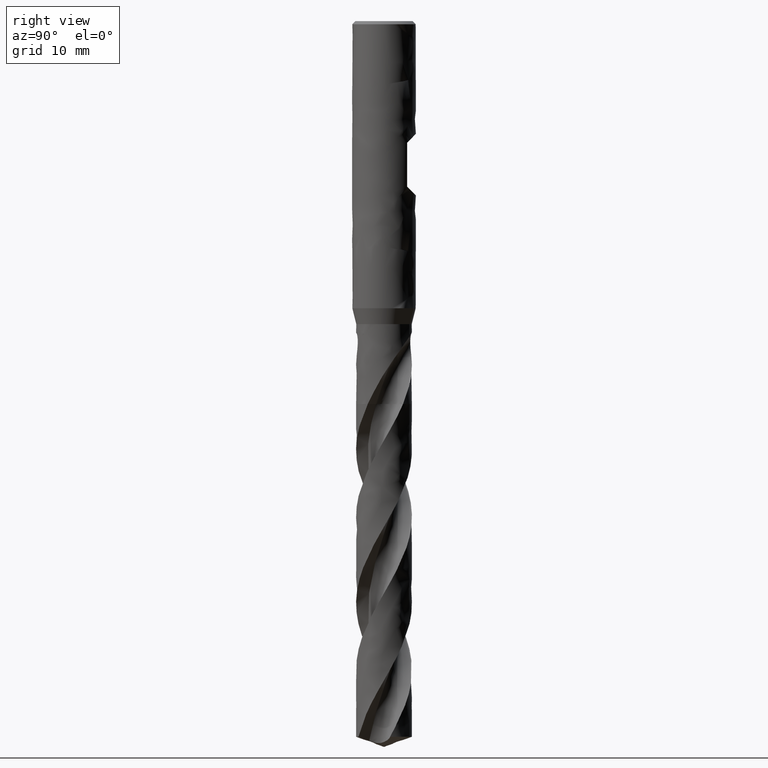
[diagram: clean part render]
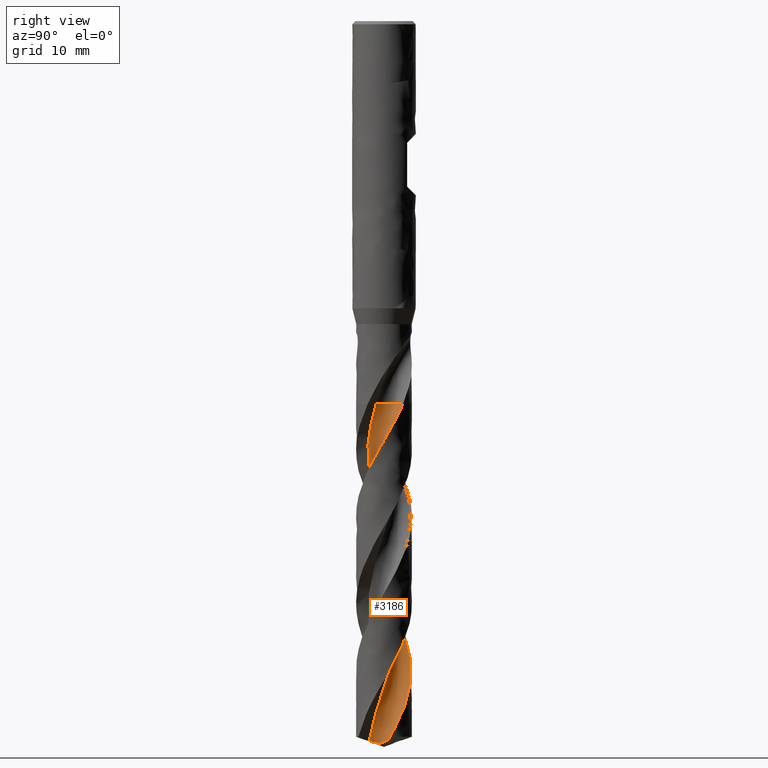
[diagram: same view with one face highlighted and labeled with its STEP entity id]
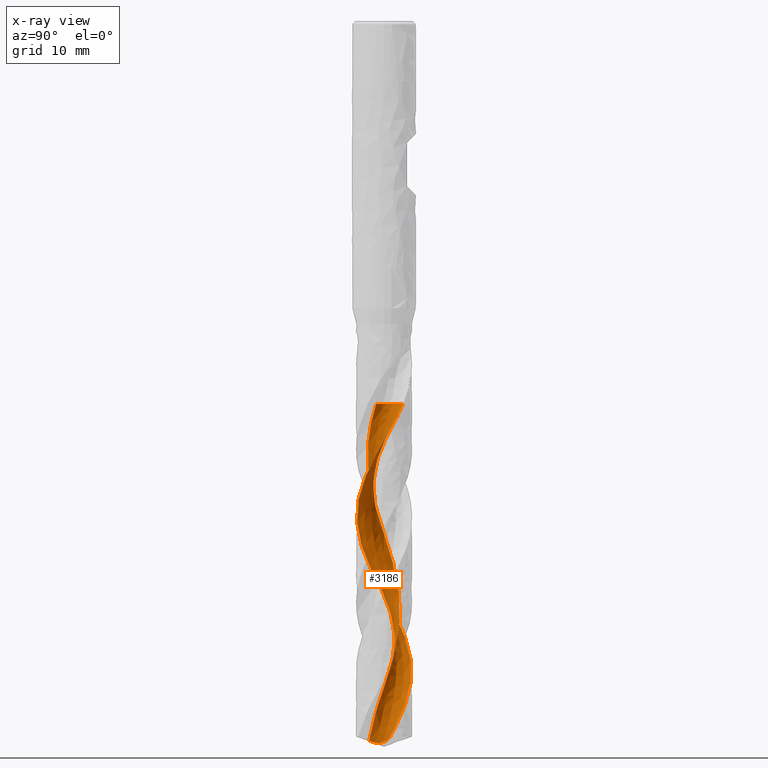
[diagram: x-ray of the same camera — body ghosted, the highlighted face saturated]
A machine part, right view. The second image highlights one B-rep face of the part: STEP entity #3186.
The next image is the same camera in x-ray: the body ghosted, the highlighted face saturated — about 0% of this face is hidden behind the body in this view.
In plain terms, the highlighted face is a freeform B-spline surface patch.
Its self-contained STEP definition (entity closure, byte-faithful):
#1834 = VERTEX_POINT('', #1835);
#1835 = CARTESIAN_POINT('', (1.87105878399884, -0.9739854601201, -48.));
#1841 = EDGE_CURVE('', #1834, #1842, #1844, .T.);
#1842 = VERTEX_POINT('', #1843);
#1843 = CARTESIAN_POINT('', (2.55478292554754, 2.3922968468254, -48.));
#1844 = B_SPLINE_CURVE_WITH_KNOTS('', 3, (#1845, #1846, #1847, #1848, #1849, #1850, #1851, #1852, #1853, #1854, #1855, #1856, #1857, #1858, #1859, #1860, #1861, #1862, #1863, #1864, #1865, #1866, #1867, #1868, #1869, #1870, #1871, #1872, #1873, #1874, #1875, #1876, #1877, #1878, #1879, #1880, #1881, #1882, #1883, #1884, #1885, #1886, #1887, #1888, #1889, #1890, #1891, #1892, #1893, #1894, #1895, #1896, #1897, #1898, #1899, #1900, #1901, #1902, #1903, #1904, #1905, #1906, #1907, #1908, #1909, #1910, #1911), .UNSPECIFIED., .F., .U., (4, 3, 3, 3, 3, 3, 3, 3, 3, 3, 3, 3, 3, 3, 3, 3, 3, 3, 3, 3, 3, 3, 4), (0., 0.198185660012881, 0.396141605212708, 0.593873296694535, 0.791385044629833, 0.988680093004827, 1.18576068233785, 1.38262809298229, 1.57928267078664, 1.77572383617321, 1.97195007706195, 2.01083276721158, 2.04973939964569, 2.24790031997675, 2.44583216438927, 2.64354026674945, 2.84102882016284, 3.03830095921687, 3.2353588205243, 3.43220358407801, 3.62883549710774, 3.82525388143031, 4.00806983014478), .UNSPECIFIED.);
#1845 = CARTESIAN_POINT('', (1.87105878399883, -0.973985460120101, -48.));
#1846 = CARTESIAN_POINT('', (1.82612948131788, -0.925554781504888, -48.));
#1847 = CARTESIAN_POINT('', (1.78342599912703, -0.874960372520404, -48.));
#1848 = CARTESIAN_POINT('', (1.74322934676003, -0.822535168572173, -48.));
#1849 = CARTESIAN_POINT('', (1.70307928588953, -0.770170730099727, -48.));
#1850 = CARTESIAN_POINT('', (1.66534231888975, -0.715865086834874, -48.));
#1851 = CARTESIAN_POINT('', (1.63026619866022, -0.659974769300589, -48.));
#1852 = CARTESIAN_POINT('', (1.59522981429397, -0.604147766922081, -48.));
#1853 = CARTESIAN_POINT('', (1.56277169465028, -0.546617721774213, -48.));
#1854 = CARTESIAN_POINT('', (1.53310445389079, -0.48776147954157, -48.));
#1855 = CARTESIAN_POINT('', (1.50347021299135, -0.42897070506756, -48.));
#1856 = CARTESIAN_POINT('', (1.47655603486923, -0.368728535440026, -48.));
#1857 = CARTESIAN_POINT('', (1.45253782721882, -0.307428705928018, -48.));
#1858 = CARTESIAN_POINT('', (1.42854597108973, -0.246196131383073, -48.));
#1859 = CARTESIAN_POINT('', (1.40739153750378, -0.183775038910553, -48.));
#1860 = CARTESIAN_POINT('', (1.38921248645845, -0.120572511674593, -48.));
#1861 = CARTESIAN_POINT('', (1.37105319597934, -0.0574386853693083, -48.));
#1862 = CARTESIAN_POINT('', (1.35582339795609, 0.00661189344721116, -48.));
#1863 = CARTESIAN_POINT('', (1.34362219903751, 0.0711624209400178, -48.));
#1864 = CARTESIAN_POINT('', (1.33143419794624, 0.135643125235903, -48.));
#1865 = CARTESIAN_POINT('', (1.32224183890544, 0.200762334896175, -48.));
#1866 = CARTESIAN_POINT('', (1.31610481130052, 0.266097206819754, -48.));
#1867 = CARTESIAN_POINT('', (1.30997441842001, 0.331361445385058, -48.));
#1868 = CARTESIAN_POINT('', (1.30687949266754, 0.396981911024951, -48.));
#1869 = CARTESIAN_POINT('', (1.30684008718142, 0.462533425115672, -48.));
#1870 = CARTESIAN_POINT('', (1.3068007244587, 0.528013801746656, -48.));
#1871 = CARTESIAN_POINT('', (1.30981015464197, 0.593566569497241, -48.));
#1872 = CARTESIAN_POINT('', (1.31584892077979, 0.658767908261811, -48.));
#1873 = CARTESIAN_POINT('', (1.32188107995833, 0.723897910832848, -48.));
#1874 = CARTESIAN_POINT('', (1.33094891429165, 0.788817385899811, -48.));
#1875 = CARTESIAN_POINT('', (1.34299392527057, 0.853107524255366, -48.));
#1876 = CARTESIAN_POINT('', (1.34538067246412, 0.86584676605113, -48.));
#1877 = CARTESIAN_POINT('', (1.347884683431, 0.878564595572167, -48.));
#1878 = CARTESIAN_POINT('', (1.35050532291457, 0.891257786360698, -48.));
#1879 = CARTESIAN_POINT('', (1.35312757607496, 0.903958793068952, -48.));
#1880 = CARTESIAN_POINT('', (1.35586682339431, 0.916636205745404, -48.));
#1881 = CARTESIAN_POINT('', (1.3587223690815, 0.929286804224081, -48.));
#1882 = CARTESIAN_POINT('', (1.37326635621222, 0.993719372154977, -48.));
#1883 = CARTESIAN_POINT('', (1.39085271744433, 1.05753945061112, -48.));
#1884 = CARTESIAN_POINT('', (1.41136575495431, 1.12032717762797, -48.));
#1885 = CARTESIAN_POINT('', (1.43185507919679, 1.18304232143208, -48.));
#1886 = CARTESIAN_POINT('', (1.45530915614775, 1.24486479624366, -48.));
#1887 = CARTESIAN_POINT('', (1.48157404118666, 1.30538882026864, -48.));
#1888 = CARTESIAN_POINT('', (1.5078092364134, 1.36584442796883, -48.));
#1889 = CARTESIAN_POINT('', (1.53690617682193, 1.42513657030635, -48.));
#1890 = CARTESIAN_POINT('', (1.56867431076911, 1.48287695163951, -48.));
#1891 = CARTESIAN_POINT('', (1.6004071671517, 1.54055321400255, -48.));
#1892 = CARTESIAN_POINT('', (1.63487443046013, 1.59680686149635, -48.));
#1893 = CARTESIAN_POINT('', (1.67185087980195, 1.65127031353934, -48.));
#1894 = CARTESIAN_POINT('', (1.70878680915182, 1.7056740827659, -48.));
#1895 = CARTESIAN_POINT('', (1.74830673434617, 1.75840988869941, -48.));
#1896 = CARTESIAN_POINT('', (1.79015298340739, 1.80913389112923, -48.));
#1897 = CARTESIAN_POINT('', (1.83195377891398, 1.85980279695498, -48.));
#1898 = CARTESIAN_POINT('', (1.87616653569077, 1.90857421820115, -48.));
#1899 = CARTESIAN_POINT('', (1.9225036091341, 1.95513085196338, -48.));
#1900 = CARTESIAN_POINT('', (1.96879057381141, 2.00163713952774, -48.));
#1901 = CARTESIAN_POINT('', (2.01729746968411, 2.0460341288164, -48.));
#1902 = CARTESIAN_POINT('', (2.06770939589123, 2.08803359998146, -48.));
#1903 = CARTESIAN_POINT('', (2.11806681109834, 2.12998765663164, -48.));
#1904 = CARTESIAN_POINT('', (2.17043392425201, 2.16964002767551, -48.));
#1905 = CARTESIAN_POINT('', (2.22447150805108, 2.20673385024622, -48.));
#1906 = CARTESIAN_POINT('', (2.278450410758, 2.24378739148184, -48.));
#1907 = CARTESIAN_POINT('', (2.33421251591738, 2.27836782864359, -48.));
#1908 = CARTESIAN_POINT('', (2.39139738674109, 2.31025163965197, -48.));
#1909 = CARTESIAN_POINT('', (2.44462207061072, 2.33992742167326, -48.));
#1910 = CARTESIAN_POINT('', (2.49918595568339, 2.36732663012836, -48.));
#1911 = CARTESIAN_POINT('', (2.55478295803652, 2.39229677448741, -48.));
#3008 = EDGE_CURVE('', #1842, #3009, #3011, .T.);
#3009 = VERTEX_POINT('', #3010);
#3010 = CARTESIAN_POINT('', (3.40032915034976, 0.829313975091291, -51.1146068241001));
#3011 = B_SPLINE_CURVE_WITH_KNOTS('', 3, (#3012, #3013, #3014, #3015, #3016, #3017, #3018, #3019, #3020, #3021, #3022, #3023, #3024, #3025, #3026, #3027, #3028, #3029, #3030, #3031, #3032, #3033, #3034, #3035, #3036), .UNSPECIFIED., .F., .U., (4, 3, 3, 3, 3, 3, 3, 3, 4), (2.44854560069451, 2.56196350698601, 3.00523968783606, 3.30076469841309, 3.96540453064606, 4.62984263438679, 5.2941003744853, 5.95816600974996, 6.04395122595029), .UNSPECIFIED.);
#3012 = CARTESIAN_POINT('', (2.55478292554754, 2.3922968468254, -48.));
#3013 = CARTESIAN_POINT('', (2.56771370512689, 2.37848780179523, -48.0327321934645));
#3014 = CARTESIAN_POINT('', (2.58052918009223, 2.3645774808506, -48.0654683666994));
#3015 = CARTESIAN_POINT('', (2.59322761697004, 2.35056812847105, -48.0982064030018));
#3016 = CARTESIAN_POINT('', (2.64285747512926, 2.29581476172286, -48.2261579070911));
#3017 = CARTESIAN_POINT('', (2.69070916361656, 2.23953839635745, -48.3541686852034));
#3018 = CARTESIAN_POINT('', (2.73672120911983, 2.18182424213173, -48.4821710658864));
#3019 = CARTESIAN_POINT('', (2.76739669050471, 2.14334715544213, -48.567508168441));
#3020 = CARTESIAN_POINT('', (2.79726110734358, 2.10422263584689, -48.652851216331));
#3021 = CARTESIAN_POINT('', (2.82629352405804, 2.06447691095532, -48.7381816831251));
#3022 = CARTESIAN_POINT('', (2.89158783040706, 1.9750882264838, -48.9300910820068));
#3023 = CARTESIAN_POINT('', (2.95268185273335, 1.8825325448237, -49.1220262225116));
#3024 = CARTESIAN_POINT('', (3.00922298377582, 1.78733797417146, -49.3139220144172));
#3025 = CARTESIAN_POINT('', (3.06574695370854, 1.6921722965471, -49.5057595629752));
#3026 = CARTESIAN_POINT('', (3.11775547090235, 1.59431687848574, -49.6976649295202));
#3027 = CARTESIAN_POINT('', (3.16499907355799, 1.49424926447262, -49.8895180635713));
#3028 = CARTESIAN_POINT('', (3.21222985180124, 1.39420881410232, -50.0813191185351));
#3029 = CARTESIAN_POINT('', (3.25472538768243, 1.29189788365627, -50.2731735684889));
#3030 = CARTESIAN_POINT('', (3.29226901483488, 1.1878403655196, -50.4649781351406));
#3031 = CARTESIAN_POINT('', (3.32980178428584, 1.08381294105143, -50.6567272314798));
#3032 = CARTESIAN_POINT('', (3.36240654508753, 0.977982304032934, -50.8485341481703));
#3033 = CARTESIAN_POINT('', (3.3899206177559, 0.870883577358286, -51.0402917251286));
#3034 = CARTESIAN_POINT('', (3.39347493610497, 0.857048367501501, -51.0650633204708));
#3035 = CARTESIAN_POINT('', (3.3969445423249, 0.843191446923523, -51.0898350992799));
#3036 = CARTESIAN_POINT('', (3.40032915034975, 0.829313975091304, -51.1146068241001));
#3186 = ADVANCED_FACE('', (#3187), #3463, .T.);
#3187 = FACE_OUTER_BOUND('', #3188, .T.);
#3188 = EDGE_LOOP('', (#3189, #3190, #3264, #3384, #3396, #3462));
#3189 = ORIENTED_EDGE('', *, *, #1841, .F.);
#3190 = ORIENTED_EDGE('', *, *, #3191, .F.);
#3191 = EDGE_CURVE('', #3192, #1834, #3194, .T.);
#3192 = VERTEX_POINT('', #3193);
#3193 = CARTESIAN_POINT('', (0.959453106537391, -1.86267864811491, -90.2373870718703));
#3194 = B_SPLINE_CURVE_WITH_KNOTS('', 3, (#3195, #3196, #3197, #3198, #3199, #3200, #3201, #3202, #3203, #3204, #3205, #3206, #3207, #3208, #3209, #3210, #3211, #3212, #3213, #3214, #3215, #3216, #3217, #3218, #3219, #3220, #3221, #3222, #3223, #3224, #3225, #3226, #3227, #3228, #3229, #3230, #3231, #3232, #3233, #3234, #3235, #3236, #3237, #3238, #3239, #3240, #3241, #3242, #3243, #3244, #3245, #3246, #3247, #3248, #3249, #3250, #3251, #3252, #3253, #3254, #3255, #3256, #3257, #3258, #3259, #3260, #3261, #3262, #3263), .UNSPECIFIED., .F., .U., (4, 1, 1, 1, 1, 1, 1, 1, 1, 1, 1, 1, 1, 1, 1, 1, 1, 1, 1, 1, 1, 1, 1, 1, 1, 1, 1, 1, 1, 1, 1, 1, 1, 1, 1, 1, 1, 1, 1, 1, 1, 1, 1, 1, 1, 1, 1, 1, 1, 1, 1, 1, 1, 1, 1, 1, 1, 1, 1, 1, 1, 1, 1, 1, 1, 1, 4), (0.812612928129724, 1.28518518518519, 1.92777777777778, 2.57037037037037, 3.21296296296296, 3.85555555555556, 4.49814814814815, 5.14074074074074, 5.78333333333333, 6.42592592592593, 7.06851851851852, 7.71111111111111, 8.3537037037037, 8.9962962962963, 9.63888888888889, 10.2814814814815, 10.9240740740741, 11.5666666666667, 12.2092592592593, 12.8518518518519, 13.4944444444444, 14.137037037037, 14.7796296296296, 15.4222222222222, 16.0648148148148, 16.7074074074074, 17.35, 17.9925925925926, 18.6351851851852, 19.2777777777778, 19.9203703703704, 20.562962962963, 21.2055555555556, 21.8481481481482, 22.4907407407407, 23.1333333333333, 23.7759259259259, 24.4185185185185, 25.0611111111111, 25.7037037037037, 26.3462962962963, 26.9888888888889, 27.6314814814815, 28.2740740740741, 28.9166666666667, 29.5592592592593, 30.2018518518519, 30.8444444444444, 31.487037037037, 32.1296296296296, 32.7722222222222, 33.4148148148148, 34.0574074074074, 34.7, 35.3425925925926, 35.9851851851852, 36.6277777777778, 37.2703703703704, 37.912962962963, 38.5555555555556, 39.1981481481482, 39.8407407407407, 40.4833333333333, 41.1259259259259, 41.7685185185185, 42.4111111111111, 43.05), .UNSPECIFIED.);
#3195 = CARTESIAN_POINT('', (0.959453106537387, -1.86267864811492, -90.2373870718703));
#3196 = CARTESIAN_POINT('', (1.00673479369381, -1.83675138737543, -90.0798629861851));
#3197 = CARTESIAN_POINT('', (1.11585591064536, -1.77136073445176, -89.7081413696358));
#3198 = CARTESIAN_POINT('', (1.27756060988365, -1.65336782369903, -89.1222222222222));
#3199 = CARTESIAN_POINT('', (1.44006450271555, -1.50660404251294, -88.4796296296296));
#3200 = CARTESIAN_POINT('', (1.58605536126899, -1.34414575526649, -87.837037037037));
#3201 = CARTESIAN_POINT('', (1.71404800879929, -1.16781759807897, -87.1944444444444));
#3202 = CARTESIAN_POINT('', (1.82275462228815, -0.979580513726898, -86.5518518518519));
#3203 = CARTESIAN_POINT('', (1.91109791334116, -0.781511955428573, -85.9092592592592));
#3204 = CARTESIAN_POINT('', (1.97822101805496, -0.575783307794542, -85.2666666666667));
#3205 = CARTESIAN_POINT('', (2.02349536357702, -0.364636930385888, -84.6240740740741));
#3206 = CARTESIAN_POINT('', (2.04652608410374, -0.15036247702996, -83.9814814814815));
#3207 = CARTESIAN_POINT('', (2.04715504318539, 0.0647271124441746, -83.3388888888889));
#3208 = CARTESIAN_POINT('', (2.02546141975339, 0.278319747526504, -82.6962962962963));
#3209 = CARTESIAN_POINT('', (1.98175987222933, 0.488128196192194, -82.0537037037037));
#3210 = CARTESIAN_POINT('', (1.91659630985968, 0.691913731615287, -81.4111111111111));
#3211 = CARTESIAN_POINT('', (1.83074132597324, 0.887509181272412, -80.7685185185185));
#3212 = CARTESIAN_POINT('', (1.72518136972981, 1.07284115144455, -80.1259259259259));
#3213 = CARTESIAN_POINT('', (1.60110775473214, 1.24595120910678, -79.4833333333333));
#3214 = CARTESIAN_POINT('', (1.45990362339492, 1.40501581453391, -78.8407407407407));
#3215 = CARTESIAN_POINT('', (1.30312900529724, 1.54836481108615, -78.1981481481482));
#3216 = CARTESIAN_POINT('', (1.13250412564692, 1.67449829355771, -77.5555555555555));
#3217 = CARTESIAN_POINT('', (0.94989113632215, 1.78210169299309, -76.912962962963));
#3218 = CARTESIAN_POINT('', (0.757274456582976, 1.87005893384799, -76.2703703703704));
#3219 = CARTESIAN_POINT('', (0.556739923340687, 1.93746353862014, -75.6277777777778));
#3220 = CARTESIAN_POINT('', (0.350452961730159, 1.98362757541857, -74.9851851851852));
#3221 = CARTESIAN_POINT('', (0.140635995560024, 2.00808836518644, -74.3425925925926));
#3222 = CARTESIAN_POINT('', (-0.0704546760528347, 2.01061288724662, -73.7));
#3223 = CARTESIAN_POINT('', (-0.280552304976307, 1.99119984429774, -73.0574074074074));
#3224 = CARTESIAN_POINT('', (-0.48740318999748, 1.95007937074632, -72.4148148148148));
#3225 = CARTESIAN_POINT('', (-0.688790008911783, 1.88771039111118, -71.7722222222222));
#3226 = CARTESIAN_POINT('', (-0.8825547552729, 1.8047756579716, -71.1296296296296));
#3227 = CARTESIAN_POINT('', (-1.06662105247123, 1.70217452134658, -70.487037037037));
#3228 = CARTESIAN_POINT('', (-1.23901562409768, 1.58101350328637, -69.8444444444444));
#3229 = CARTESIAN_POINT('', (-1.39788870790507, 1.44259477263218, -69.2018518518518));
#3230 = CARTESIAN_POINT('', (-1.54153321102345, 1.28840263516627, -68.5592592592593));
#3231 = CARTESIAN_POINT('', (-1.66840241632296, 1.12008817354889, -67.9166666666667));
#3232 = CARTESIAN_POINT('', (-1.77712606383766, 0.939452189349017, -67.2740740740741));
#3233 = CARTESIAN_POINT('', (-1.8665246468383, 0.748426615960248, -66.6314814814815));
#3234 = CARTESIAN_POINT('', (-1.93562177933207, 0.54905458610226, -65.9888888888889));
#3235 = CARTESIAN_POINT('', (-1.98365451031746, 0.34346935080497, -65.3462962962963));
#3236 = CARTESIAN_POINT('', (-2.010081479867, 0.133872258136736, -64.7037037037037));
#3237 = CARTESIAN_POINT('', (-2.014588832874, -0.0774899906383547, -64.0611111111111));
#3238 = CARTESIAN_POINT('', (-1.99709382789401, -0.288348582393627, -63.4185185185185));
#3239 = CARTESIAN_POINT('', (-1.95774610074592, -0.496436100589581, -62.7759259259259));
#3240 = CARTESIAN_POINT('', (-1.89692656520971, -0.699510067328815, -62.1333333333333));
#3241 = CARTESIAN_POINT('', (-1.81524395606485, -0.895376284558908, -61.4907407407407));
#3242 = CARTESIAN_POINT('', (-1.71352904264711, -1.08191174122991, -60.8481481481481));
#3243 = CARTESIAN_POINT('', (-1.59282656385302, -1.25708685668331, -60.2055555555555));
#3244 = CARTESIAN_POINT('', (-1.45438495788266, -1.41898683620626, -59.562962962963));
#3245 = CARTESIAN_POINT('', (-1.29964398177578, -1.56583192248691, -58.9203703703704));
#3246 = CARTESIAN_POINT('', (-1.1302203367633, -1.69599633659393, -58.2777777777778));
#3247 = CARTESIAN_POINT('', (-0.947891435418749, -1.80802571400117, -57.6351851851852));
#3248 = CARTESIAN_POINT('', (-0.754577465402748, -1.90065285497726, -56.9925925925926));
#3249 = CARTESIAN_POINT('', (-0.552321921916402, -1.97281162429218, -56.35));
#3250 = CARTESIAN_POINT('', (-0.343270797208791, -2.02364885235368, -55.7074074074074));
#3251 = CARTESIAN_POINT('', (-0.129650628363317, -2.05253410907911, -55.0648148148148));
#3252 = CARTESIAN_POINT('', (0.086254378199175, -2.05906724043841, -54.4222222222222));
#3253 = CARTESIAN_POINT('', (0.302125934857211, -2.04308358457822, -53.7796296296296));
#3254 = CARTESIAN_POINT('', (0.515635686821465, -2.00465678566696, -53.137037037037));
#3255 = CARTESIAN_POINT('', (0.724469612269798, -1.94409922540482, -52.4944444444444));
#3256 = CARTESIAN_POINT('', (0.926351820488337, -1.86195982214182, -51.8518518518518));
#3257 = CARTESIAN_POINT('', (1.11907028309299, -1.75902006768821, -51.2092592592593));
#3258 = CARTESIAN_POINT('', (1.30049387979968, -1.63628510547679, -50.5666666666667));
#3259 = CARTESIAN_POINT('', (1.46861923632115, -1.49498194430208, -49.9240740740741));
#3260 = CARTESIAN_POINT('', (1.62150262017362, -1.33651995053838, -49.2814814814815));
#3261 = CARTESIAN_POINT('', (1.75735443948593, -1.16291559497238, -48.6401234567901));
#3262 = CARTESIAN_POINT('', (1.83516501613815, -1.03805991579633, -48.212962962963));
#3263 = CARTESIAN_POINT('', (1.87105878399884, -0.9739854601201, -48.));
#3264 = ORIENTED_EDGE('', *, *, #3265, .T.);
#3265 = EDGE_CURVE('', #3192, #3266, #3268, .T.);
#3266 = VERTEX_POINT('', #3267);
#3267 = CARTESIAN_POINT('', (3.41733029677763, 0.756210051986677, -89.7261041800683));
#3268 = B_SPLINE_CURVE_WITH_KNOTS('', 3, (#3269, #3270, #3271, #3272, #3273, #3274, #3275, #3276, #3277, #3278, #3279, #3280, #3281, #3282, #3283, #3284, #3285, #3286, #3287, #3288, #3289, #3290, #3291, #3292, #3293, #3294, #3295, #3296, #3297, #3298, #3299, #3300, #3301, #3302, #3303, #3304, #3305, #3306, #3307, #3308, #3309, #3310, #3311, #3312, #3313, #3314, #3315, #3316, #3317, #3318, #3319, #3320, #3321, #3322, #3323, #3324, #3325, #3326, #3327, #3328, #3329, #3330, #3331, #3332, #3333, #3334, #3335, #3336, #3337, #3338, #3339, #3340, #3341, #3342, #3343, #3344, #3345, #3346, #3347, #3348, #3349, #3350, #3351, #3352, #3353, #3354, #3355, #3356, #3357, #3358, #3359, #3360, #3361, #3362, #3363, #3364, #3365, #3366, #3367, #3368, #3369, #3370, #3371, #3372, #3373, #3374, #3375, #3376, #3377, #3378, #3379, #3380, #3381, #3382, #3383), .UNSPECIFIED., .F., .U., (4, 3, 3, 3, 3, 3, 3, 3, 3, 3, 3, 3, 3, 3, 3, 3, 3, 3, 3, 3, 3, 3, 3, 3, 3, 3, 3, 3, 3, 3, 3, 3, 3, 3, 3, 3, 3, 3, 4), (0., 0.131532600994356, 0.262946989462273, 0.394201536538365, 0.525253913306521, 0.656071726488589, 0.743303418109421, 0.830474163332587, 0.917599516909086, 1.0047025181662, 1.09181165532131, 1.17895682083123, 1.26616406501259, 1.35345076672802, 1.44082291477981, 1.52827531939607, 1.61579428730336, 1.70336143774772, 1.79095730853466, 1.87856394898319, 1.9661663250681, 2.02455914502019, 2.05051629960113, 2.13844859006999, 2.16442698996421, 2.19042078228371, 2.3229442813446, 2.45517467028275, 2.58716037703592, 2.71894189059017, 2.85055199306657, 2.98201673482319, 3.11335657537331, 3.24458744566821, 3.37572164886734, 3.57204063278222, 3.76809802290359, 3.96391621955433, 4.17615603102416), .UNSPECIFIED.);
#3269 = CARTESIAN_POINT('', (0.959453106537389, -1.86267864811491, -90.2373870718703));
#3270 = CARTESIAN_POINT('', (0.949384133137003, -1.82259870132123, -90.2520338306374));
#3271 = CARTESIAN_POINT('', (0.940922847394017, -1.78202959700929, -90.2665492490767));
#3272 = CARTESIAN_POINT('', (0.934147192198522, -1.74113428411029, -90.2808313281365));
#3273 = CARTESIAN_POINT('', (0.92737762649957, -1.70027572512797, -90.2951005714382));
#3274 = CARTESIAN_POINT('', (0.922280471394609, -1.65902799921976, -90.309159285979));
#3275 = CARTESIAN_POINT('', (0.918918258479558, -1.61756537004407, -90.3228853951298));
#3276 = CARTESIAN_POINT('', (0.915560135077065, -1.57615317251771, -90.3365948089977));
#3277 = CARTESIAN_POINT('', (0.913927655198312, -1.53445857928139, -90.3499950675861));
#3278 = CARTESIAN_POINT('', (0.914063262422931, -1.49266658233699, -90.3629413306543));
#3279 = CARTESIAN_POINT('', (0.914198660772849, -1.45093895726451, -90.3758676526991));
#3280 = CARTESIAN_POINT('', (0.916097504182115, -1.40904179270235, -90.3883637338054));
#3281 = CARTESIAN_POINT('', (0.919775908729846, -1.36717028515664, -90.4002611715271));
#3282 = CARTESIAN_POINT('', (0.923447729499526, -1.32537372116561, -90.4121373146662));
#3283 = CARTESIAN_POINT('', (0.928900186913429, -1.28352604538602, -90.4234382459807));
#3284 = CARTESIAN_POINT('', (0.936114923258157, -1.24183204995284, -90.4339756142183));
#3285 = CARTESIAN_POINT('', (0.940925840369828, -1.214029737228, -90.441002122568));
#3286 = CARTESIAN_POINT('', (0.946524393667929, -1.18626613789241, -90.4476963141471));
#3287 = CARTESIAN_POINT('', (0.952894418522687, -1.15860430001327, -90.4539995549318));
#3288 = CARTESIAN_POINT('', (0.95925999281526, -1.13096178870387, -90.4602983918145));
#3289 = CARTESIAN_POINT('', (0.966401731067222, -1.10339625157021, -90.4662122224516));
#3290 = CARTESIAN_POINT('', (0.974293452882386, -1.07597194434941, -90.4716832748085));
#3291 = CARTESIAN_POINT('', (0.982181065311455, -1.04856191754414, -90.4771514782729));
#3292 = CARTESIAN_POINT('', (0.990825159625373, -1.02126790233381, -90.4821820937588));
#3293 = CARTESIAN_POINT('', (1.00018867509724, -0.994154437063136, -90.4867218985398));
#3294 = CARTESIAN_POINT('', (1.0095497883259, -0.967047927848422, -90.4912605386178));
#3295 = CARTESIAN_POINT('', (1.01963865350675, -0.940096709766169, -90.4953125420668));
#3296 = CARTESIAN_POINT('', (1.03040726088181, -0.913364110537731, -90.4988335888057));
#3297 = CARTESIAN_POINT('', (1.04117662684239, -0.886629628153724, -90.5023548835818));
#3298 = CARTESIAN_POINT('', (1.05263575687858, -0.860088982924512, -90.50534816357));
#3299 = CARTESIAN_POINT('', (1.0647268123226, -0.833802245182052, -90.5077823175386));
#3300 = CARTESIAN_POINT('', (1.07682286862932, -0.807504635240129, -90.5102174782738));
#3301 = CARTESIAN_POINT('', (1.08956222092549, -0.781437222665856, -90.5120951210404));
#3302 = CARTESIAN_POINT('', (1.10287967762279, -0.755654478377467, -90.5134006166222));
#3303 = CARTESIAN_POINT('', (1.11620662113458, -0.729853367510715, -90.514707042186));
#3304 = CARTESIAN_POINT('', (1.13012386929494, -0.704314867842906, -90.515441652716));
#3305 = CARTESIAN_POINT('', (1.14456246819645, -0.6790857020391, -90.5156076276651));
#3306 = CARTESIAN_POINT('', (1.15901422260443, -0.653833549070403, -90.5157737538398));
#3307 = CARTESIAN_POINT('', (1.17399974773828, -0.628870792461657, -90.5153705117096));
#3308 = CARTESIAN_POINT('', (1.18945037962902, -0.604234996354223, -90.5144178537129));
#3309 = CARTESIAN_POINT('', (1.2049161363883, -0.579575083875346, -90.5134642631442));
#3310 = CARTESIAN_POINT('', (1.22085905604455, -0.55522459000394, -90.511959763474));
#3311 = CARTESIAN_POINT('', (1.23721445004136, -0.531211598495315, -90.5099379878702));
#3312 = CARTESIAN_POINT('', (1.25358486744966, -0.507176549612068, -90.5079143551442));
#3313 = CARTESIAN_POINT('', (1.27037899604358, -0.483463918583495, -90.5053715086225));
#3314 = CARTESIAN_POINT('', (1.28753878142652, -0.460093071067911, -90.5023524885221));
#3315 = CARTESIAN_POINT('', (1.30471162776294, -0.436704435127509, -90.4993311705328));
#3316 = CARTESIAN_POINT('', (1.32226027311265, -0.413644831134173, -90.4958315585725));
#3317 = CARTESIAN_POINT('', (1.34013466438742, -0.390926436857416, -90.4919016727113));
#3318 = CARTESIAN_POINT('', (1.3580188961978, -0.368195535236244, -90.4879696232977));
#3319 = CARTESIAN_POINT('', (1.37623782333919, -0.345795173512843, -90.4836051763606));
#3320 = CARTESIAN_POINT('', (1.39474959465266, -0.323732197420574, -90.4788575393337));
#3321 = CARTESIAN_POINT('', (1.41326743747139, -0.301661985096128, -90.4741083451731));
#3322 = CARTESIAN_POINT('', (1.43208592006482, -0.279920257990321, -90.4689739337437));
#3323 = CARTESIAN_POINT('', (1.45117077436055, -0.258510329114202, -90.4635019229697));
#3324 = CARTESIAN_POINT('', (1.47025797508448, -0.23709776794861, -90.4580292394276));
#3325 = CARTESIAN_POINT('', (1.48961831328983, -0.216009554101581, -90.4522170656793));
#3326 = CARTESIAN_POINT('', (1.50922404767675, -0.19524698033367, -90.4461096945609));
#3327 = CARTESIAN_POINT('', (1.52882882772985, -0.174485417210201, -90.4400026207264));
#3328 = CARTESIAN_POINT('', (1.54868490244026, -0.154043199643881, -90.4335985976201));
#3329 = CARTESIAN_POINT('', (1.56876986560875, -0.133920744370086, -90.4269377190479));
#3330 = CARTESIAN_POINT('', (1.58215783167151, -0.120507787321321, -90.4224977997149));
#3331 = CARTESIAN_POINT('', (1.59564955226227, -0.107234916302311, -90.417943026686));
#3332 = CARTESIAN_POINT('', (1.60923945114981, -0.094102220100665, -90.4132841776356));
#3333 = CARTESIAN_POINT('', (1.61528052103567, -0.0882643889143921, -90.4112131958767));
#3334 = CARTESIAN_POINT('', (1.62134120918821, -0.0824540542201545, -90.4091215660866));
#3335 = CARTESIAN_POINT('', (1.62742107096521, -0.0766712268759124, -90.4070101797056));
#3336 = CARTESIAN_POINT('', (1.6480171717481, -0.0570813580334147, -90.3998576607354));
#3337 = CARTESIAN_POINT('', (1.66883612969902, -0.0378042711706705, -90.3924776714064));
#3338 = CARTESIAN_POINT('', (1.68986265236554, -0.0188407157839403, -90.3849020679326));
#3339 = CARTESIAN_POINT('', (1.69607465265922, -0.0132381911297322, -90.3826639588667));
#3340 = CARTESIAN_POINT('', (1.70230504122114, -0.00766280391907615, -90.3804086580534));
#3341 = CARTESIAN_POINT('', (1.70855346709071, -0.0021145849382169, -90.3781369180521));
#3342 = CARTESIAN_POINT('', (1.71480559520632, 0.00343692141008737, -90.3758638320253));
#3343 = CARTESIAN_POINT('', (1.7210758934404, 0.00896132621204825, -90.3735742467901));
#3344 = CARTESIAN_POINT('', (1.7273640271219, 0.0144585925279613, -90.3712688863736));
#3345 = CARTESIAN_POINT('', (1.75942266126775, 0.0424851674309147, -90.3595155252158));
#3346 = CARTESIAN_POINT('', (1.79195269503217, 0.0698139218924051, -90.3473504115561));
#3347 = CARTESIAN_POINT('', (1.824915322565, 0.0964372229522978, -90.3348583561047));
#3348 = CARTESIAN_POINT('', (1.85780504468958, 0.123001639670195, -90.3223939300771));
#3349 = CARTESIAN_POINT('', (1.89113905146065, 0.148874547860977, -90.3095987058742));
#3350 = CARTESIAN_POINT('', (1.92488501714323, 0.174043459298218, -90.2965411536377));
#3351 = CARTESIAN_POINT('', (1.95856853850658, 0.199165797596761, -90.2835077633994));
#3352 = CARTESIAN_POINT('', (1.99267539650555, 0.223596240991219, -90.2702078787792));
#3353 = CARTESIAN_POINT('', (2.02717676493516, 0.24731752179497, -90.2566972471271));
#3354 = CARTESIAN_POINT('', (2.06162475679119, 0.271002103744511, -90.2432075175799));
#3355 = CARTESIAN_POINT('', (2.0964786666677, 0.293988302888913, -90.2295026223666));
#3356 = CARTESIAN_POINT('', (2.1317111551805, 0.316254400989189, -90.2156285819717));
#3357 = CARTESIAN_POINT('', (2.16689781603, 0.338491537091899, -90.2017725878426));
#3358 = CARTESIAN_POINT('', (2.20247474407308, 0.360018379087536, -90.1877427957444));
#3359 = CARTESIAN_POINT('', (2.23841468097977, 0.380809146025694, -90.1735778798477));
#3360 = CARTESIAN_POINT('', (2.27431492294664, 0.401576949978565, -90.1594286088167));
#3361 = CARTESIAN_POINT('', (2.31059033863602, 0.421617744749235, -90.1451393216214));
#3362 = CARTESIAN_POINT('', (2.34721271144679, 0.440902053993648, -90.1307432057671));
#3363 = CARTESIAN_POINT('', (2.38380029030073, 0.460168041721134, -90.1163607672853));
#3364 = CARTESIAN_POINT('', (2.42074763094392, 0.478686019097794, -90.1018663488843));
#3365 = CARTESIAN_POINT('', (2.4580247303684, 0.496423138659958, -90.0872890996812));
#3366 = CARTESIAN_POINT('', (2.49527090166764, 0.514145542059553, -90.0727239449544));
#3367 = CARTESIAN_POINT('', (2.53286042339715, 0.531095063998036, -90.0580705214713));
#3368 = CARTESIAN_POINT('', (2.57076078987513, 0.547235771460539, -90.0433550746764));
#3369 = CARTESIAN_POINT('', (2.60863323823943, 0.563364589378223, -90.0286504675529));
#3370 = CARTESIAN_POINT('', (2.64683105076648, 0.578692117856513, -90.0138780790656));
#3371 = CARTESIAN_POINT('', (2.68531855100495, 0.593179601817988, -89.9990621512497));
#3372 = CARTESIAN_POINT('', (2.74293759131563, 0.614868589598551, -89.9768814552634));
#3373 = CARTESIAN_POINT('', (2.8012522795172, 0.634691773627871, -89.954585883727));
#3374 = CARTESIAN_POINT('', (2.86012606664142, 0.652508190957217, -89.9322520140464));
#3375 = CARTESIAN_POINT('', (2.91892140481993, 0.670300868024145, -89.9099479041048));
#3376 = CARTESIAN_POINT('', (2.9783342749635, 0.686109874276089, -89.8875827613927));
#3377 = CARTESIAN_POINT('', (3.03820382027091, 0.699783860664779, -89.8652309357413));
#3378 = CARTESIAN_POINT('', (3.09800032367809, 0.713441164549128, -89.8429063797111));
#3379 = CARTESIAN_POINT('', (3.15831945964427, 0.724983515952118, -89.8205700210619));
#3380 = CARTESIAN_POINT('', (3.21897051547614, 0.734252266720925, -89.7982974088055));
#3381 = CARTESIAN_POINT('', (3.28470786203216, 0.744298309169377, -89.7741569810664));
#3382 = CARTESIAN_POINT('', (3.35091745720051, 0.751685520643645, -89.7500613357416));
#3383 = CARTESIAN_POINT('', (3.41733029677763, 0.756210051986677, -89.7261041800683));
#3384 = ORIENTED_EDGE('', *, *, #3385, .F.);
#3385 = EDGE_CURVE('', #3386, #3266, #3388, .T.);
#3386 = VERTEX_POINT('', #3387);
#3387 = CARTESIAN_POINT('', (3.23621358706718, 1.33301223508331, -88.6576574191729));
#3388 = B_SPLINE_CURVE_WITH_KNOTS('', 3, (#3389, #3390, #3391, #3392, #3393, #3394, #3395), .UNSPECIFIED., .F., .U., (4, 3, 4), (0., 0.664192155566742, 1.22790963141986), .UNSPECIFIED.);
#3389 = CARTESIAN_POINT('', (3.23621358706717, 1.33301223508332, -88.6576574191728));
#3390 = CARTESIAN_POINT('', (3.27778316667913, 1.23209190231497, -88.8502810383199));
#3391 = CARTESIAN_POINT('', (3.31463493641275, 1.12920559866335, -89.0429603014299));
#3392 = CARTESIAN_POINT('', (3.34659086681209, 1.02485587775514, -89.2355914422851));
#3393 = CARTESIAN_POINT('', (3.37371271140521, 0.936291505557512, -89.3990825940301));
#3394 = CARTESIAN_POINT('', (3.39731985772328, 0.846637677819749, -89.5626079232584));
#3395 = CARTESIAN_POINT('', (3.41733029677763, 0.75621005198668, -89.7261041800683));
#3396 = ORIENTED_EDGE('', *, *, #3397, .T.);
#3397 = EDGE_CURVE('', #3386, #3009, #3398, .T.);
#3398 = (
   BOUNDED_CURVE ()
   B_SPLINE_CURVE (3, (#3399, #3400, #3401, #3402, #3403, #3404, #3405, #3406, #3407, #3408, #3409, #3410, #3411, #3412, #3413, #3414, #3415, #3416, #3417, #3418, #3419, #3420, #3421, #3422, #3423, #3424, #3425, #3426, #3427, #3428, #3429, #3430, #3431, #3432, #3433, #3434, #3435, #3436, #3437, #3438, #3439, #3440, #3441, #3442, #3443, #3444, #3445, #3446, #3447, #3448, #3449, #3450, #3451, #3452, #3453, #3454, #3455, #3456, #3457, #3458, #3459, #3460, #3461), .UNSPECIFIED., .F., .U.)
   B_SPLINE_CURVE_WITH_KNOTS ((4, 1, 1, 1, 1, 1, 1, 1, 1, 1, 1, 1, 1, 1, 1, 1, 1, 1, 1, 1, 1, 1, 1, 1, 1, 1, 1, 1, 1, 1, 1, 1, 1, 1, 1, 1, 1, 1, 1, 1, 1, 1, 1, 1, 1, 1, 1, 1, 1, 1, 1, 1, 1, 1, 1, 1, 1, 1, 1, 1, 4), (2.39234258082718, 2.57037037037037, 3.21296296296296, 3.85555555555556, 4.49814814814815, 5.14074074074074, 5.78333333333333, 6.42592592592593, 7.06851851851852, 7.71111111111111, 8.3537037037037, 8.9962962962963, 9.63888888888889, 10.2814814814815, 10.9240740740741, 11.5666666666667, 12.2092592592593, 12.8518518518519, 13.4944444444444, 14.137037037037, 14.7796296296296, 15.4222222222222, 16.0648148148148, 16.7074074074074, 17.35, 17.9925925925926, 18.6351851851852, 19.2777777777778, 19.9203703703704, 20.562962962963, 21.2055555555556, 21.8481481481482, 22.4907407407407, 23.1333333333333, 23.7759259259259, 24.4185185185185, 25.0611111111111, 25.7037037037037, 26.3462962962963, 26.9888888888889, 27.6314814814815, 28.2740740740741, 28.9166666666667, 29.5592592592593, 30.2018518518519, 30.8444444444444, 31.487037037037, 32.1296296296296, 32.7722222222222, 33.4148148148148, 34.0574074074074, 34.7, 35.3425925925926, 35.9851851851852, 36.6277777777778, 37.2703703703704, 37.912962962963, 38.5555555555556, 39.1981481481482, 39.8407407407407, 39.9353931758999), .UNSPECIFIED.)
   CURVE ()
   GEOMETRIC_REPRESENTATION_ITEM ()
   RATIONAL_B_SPLINE_CURVE ((1., 1., 1., 1., 1., 1., 1., 1., 1., 1., 1., 1., 1., 1., 1., 1., 1., 1., 1., 1., 1., 1., 1., 1., 1., 1., 1., 1., 1., 1., 1., 1., 1., 1., 1., 1., 1., 1., 1., 1., 1., 1., 1., 1., 1., 1., 1., 1., 1., 1., 1., 1., 1., 1., 1., 1., 1., 1., 1., 1., 1., 1., 1.))
   REPRESENTATION_ITEM ('')
);
#3399 = CARTESIAN_POINT('', (3.23621358706717, 1.33301223508333, -88.6576574191728));
#3400 = CARTESIAN_POINT('', (3.22253958724728, 1.36406714672126, -88.5983148226584));
#3401 = CARTESIAN_POINT('', (3.15746582081698, 1.50625501132526, -88.3247746952798));
#3402 = CARTESIAN_POINT('', (3.02486791318012, 1.7514124832571, -87.837037037037));
#3403 = CARTESIAN_POINT('', (2.81803520033411, 2.05374997046218, -87.1944444444444));
#3404 = CARTESIAN_POINT('', (2.58144386558697, 2.33228324796233, -86.5518518518519));
#3405 = CARTESIAN_POINT('', (2.3177742328997, 2.58413218183551, -85.9092592592593));
#3406 = CARTESIAN_POINT('', (2.02997996118251, 2.80671254596587, -85.2666666666667));
#3407 = CARTESIAN_POINT('', (1.72125614335056, 2.99776145512587, -84.6240740740741));
#3408 = CARTESIAN_POINT('', (1.39500487331661, 3.15535932739247, -83.9814814814815));
#3409 = CARTESIAN_POINT('', (1.05479894112343, 3.27794824170182, -83.3388888888889));
#3410 = CARTESIAN_POINT('', (0.704343949641171, 3.3643465097571, -82.6962962962963));
#3411 = CARTESIAN_POINT('', (0.347439261868375, 3.41375934188197, -82.0537037037037));
#3412 = CARTESIAN_POINT('', (-0.0120618305467996, 3.42578551938251, -81.4111111111111));
#3413 = CARTESIAN_POINT('', (-0.370292314307882, 3.40042002708405, -80.7685185185185));
#3414 = CARTESIAN_POINT('', (-0.723411634301782, 3.33805263895586, -80.1259259259259));
#3415 = CARTESIAN_POINT('', (-1.06764544546416, 3.2394624893368, -79.4833333333333));
#3416 = CARTESIAN_POINT('', (-1.39932454223246, 3.10580870117747, -78.8407407407407));
#3417 = CARTESIAN_POINT('', (-1.71492258101102, 2.93861718075085, -78.1981481481482));
#3418 = CARTESIAN_POINT('', (-2.01109222457387, 2.73976372506228, -77.5555555555555));
#3419 = CARTESIAN_POINT('', (-2.28469935425498, 2.51145362339667, -76.912962962963));
#3420 = CARTESIAN_POINT('', (-2.5328550159633, 2.25619796776081, -76.2703703703704));
#3421 = CARTESIAN_POINT('', (-2.75294478930325, 1.97678691811958, -75.6277777777778));
#3422 = CARTESIAN_POINT('', (-2.9426552951537, 1.67626019701547, -74.9851851851852));
#3423 = CARTESIAN_POINT('', (-3.09999758570831, 1.35787511415273, -74.3425925925926));
#3424 = CARTESIAN_POINT('', (-3.22332719193482, 1.0250724445967, -73.7));
#3425 = CARTESIAN_POINT('', (-3.31136063638092, 0.681440504189406, -73.0574074074074));
#3426 = CARTESIAN_POINT('', (-3.36318825393228, 0.330677782444661, -72.4148148148148));
#3427 = CARTESIAN_POINT('', (-3.37828319919518, -0.0234454935788117, -71.7722222222222));
#3428 = CARTESIAN_POINT('', (-3.3565065563007, -0.377126481230284, -71.1296296296296));
#3429 = CARTESIAN_POINT('', (-3.29810850477227, -0.726569140767513, -70.487037037037));
#3430 = CARTESIAN_POINT('', (-3.20372553331884, -1.06802355870726, -69.8444444444444));
#3431 = CARTESIAN_POINT('', (-3.07437373166686, -1.39782478558734, -69.2018518518518));
#3432 = CARTESIAN_POINT('', (-2.91143822848003, -1.71243080262324, -68.5592592592593));
#3433 = CARTESIAN_POINT('', (-2.71665888069341, -2.00845924027907, -67.9166666666667));
#3434 = CARTESIAN_POINT('', (-2.49211235587249, -2.28272248384484, -67.2740740740741));
#3435 = CARTESIAN_POINT('', (-2.24019078416969, -2.53226081661293, -66.6314814814815));
#3436 = CARTESIAN_POINT('', (-1.96357718977411, -2.7543732700346, -65.9888888888889));
#3437 = CARTESIAN_POINT('', (-1.66521794313272, -2.94664587214955, -65.3462962962963));
#3438 = CARTESIAN_POINT('', (-1.34829250437597, -3.10697701041915, -64.7037037037037));
#3439 = CARTESIAN_POINT('', (-1.01618075504, -3.23359965264238, -64.0611111111111));
#3440 = CARTESIAN_POINT('', (-0.672428239094633, -3.32510019964472, -63.4185185185185));
#3441 = CARTESIAN_POINT('', (-0.320709655236877, -3.38043377564192, -62.7759259259259));
#3442 = CARTESIAN_POINT('', (0.0352090398053255, -3.39893579630483, -62.1333333333333));
#3443 = CARTESIAN_POINT('', (0.391509542767617, -3.38032969028687, -61.4907407407407));
#3444 = CARTESIAN_POINT('', (0.744360744986636, -3.32473068700143, -60.8481481481481));
#3445 = CARTESIAN_POINT('', (1.08995851065788, -3.23264562142264, -60.2055555555555));
#3446 = CARTESIAN_POINT('', (1.42456529600723, -3.10496874528647, -59.562962962963));
#3447 = CARTESIAN_POINT('', (1.74454921321888, -2.94297357293985, -58.9203703703704));
#3448 = CARTESIAN_POINT('', (2.04642214676479, -2.74830082887363, -58.2777777777778));
#3449 = CARTESIAN_POINT('', (2.32687653733366, -2.52294260230852, -57.6351851851852));
#3450 = CARTESIAN_POINT('', (2.58282045977341, -2.26922285178385, -56.9925925925926));
#3451 = CARTESIAN_POINT('', (2.81141063641957, -1.98977443896515, -56.35));
#3452 = CARTESIAN_POINT('', (3.01008304517864, -1.68751290628316, -55.7074074074074));
#3453 = CARTESIAN_POINT('', (3.17658080484359, -1.36560724426057, -55.0648148148148));
#3454 = CARTESIAN_POINT('', (3.30897903988565, -1.02744793216861, -54.4222222222222));
#3455 = CARTESIAN_POINT('', (3.40570647408227, -0.676612538563045, -53.7796296296296));
#3456 = CARTESIAN_POINT('', (3.46556346126825, -0.316829289438162, -53.137037037037));
#3457 = CARTESIAN_POINT('', (3.4877364622922, 0.0480613217193351, -52.4944444444444));
#3458 = CARTESIAN_POINT('', (3.47180801366733, 0.414145458837865, -51.8518518518518));
#3459 = CARTESIAN_POINT('', (3.43312586572254, 0.674207168928913, -51.3919059784037));
#3460 = CARTESIAN_POINT('', (3.40418124945714, 0.811689356913139, -51.1461576358198));
#3461 = CARTESIAN_POINT('', (3.40032915034975, 0.829313975091292, -51.1146068241001));
#3462 = ORIENTED_EDGE('', *, *, #3008, .F.);
#3463 = (
   BOUNDED_SURFACE ()
   B_SPLINE_SURFACE (3, 2, ((#3464, #3465, #3466, #3467, #3468), (#3469, #3470, #3471, #3472, #3473), (#3474, #3475, #3476, #3477, #3478), (#3479, #3480, #3481, #3482, #3483), (#3484, #3485, #3486, #3487, #3488), (#3489, #3490, #3491, #3492, #3493), (#3494, #3495, #3496, #3497, #3498), (#3499, #3500, #3501, #3502, #3503), (#3504, #3505, #3506, #3507, #3508), (#3509, #3510, #3511, #3512, #3513), (#3514, #3515, #3516, #3517, #3518), (#3519, #3520, #3521, #3522, #3523), (#3524, #3525, #3526, #3527, #3528), (#3529, #3530, #3531, #3532, #3533), (#3534, #3535, #3536, #3537, #3538), (#3539, #3540, #3541, #3542, #3543), (#3544, #3545, #3546, #3547, #3548), (#3549, #3550, #3551, #3552, #3553), (#3554, #3555, #3556, #3557, #3558), (#3559, #3560, #3561, #3562, #3563), (#3564, #3565, #3566, #3567, #3568), (#3569, #3570, #3571, #3572, #3573), (#3574, #3575, #3576, #3577, #3578), (#3579, #3580, #3581, #3582, #3583), (#3584, #3585, #3586, #3587, #3588), (#3589, #3590, #3591, #3592, #3593), (#3594, #3595, #3596, #3597, #3598), (#3599, #3600, #3601, #3602, #3603), (#3604, #3605, #3606, #3607, #3608), (#3609, #3610, #3611, #3612, #3613), (#3614, #3615, #3616, #3617, #3618), (#3619, #3620, #3621, #3622, #3623), (#3624, #3625, #3626, #3627, #3628), (#3629, #3630, #3631, #3632, #3633), (#3634, #3635, #3636, #3637, #3638), (#3639, #3640, #3641, #3642, #3643), (#3644, #3645, #3646, #3647, #3648), (#3649, #3650, #3651, #3652, #3653), (#3654, #3655, #3656, #3657, #3658), (#3659, #3660, #3661, #3662, #3663), (#3664, #3665, #3666, #3667, #3668), (#3669, #3670, #3671, #3672, #3673), (#3674, #3675, #3676, #3677, #3678), (#3679, #3680, #3681, #3682, #3683), (#3684, #3685, #3686, #3687, #3688), (#3689, #3690, #3691, #3692, #3693), (#3694, #3695, #3696, #3697, #3698), (#3699, #3700, #3701, #3702, #3703), (#3704, #3705, #3706, #3707, #3708), (#3709, #3710, #3711, #3712, #3713), (#3714, #3715, #3716, #3717, #3718), (#3719, #3720, #3721, #3722, #3723), (#3724, #3725, #3726, #3727, #3728), (#3729, #3730, #3731, #3732, #3733), (#3734, #3735, #3736, #3737, #3738), (#3739, #3740, #3741, #3742, #3743), (#3744, #3745, #3746, #3747, #3748), (#3749, #3750, #3751, #3752, #3753), (#3754, #3755, #3756, #3757, #3758), (#3759, #3760, #3761, #3762, #3763), (#3764, #3765, #3766, #3767, #3768), (#3769, #3770, #3771, #3772, #3773), (#3774, #3775, #3776, #3777, #3778), (#3779, #3780, #3781, #3782, #3783), (#3784, #3785, #3786, #3787, #3788), (#3789, #3790, #3791, #3792, #3793), (#3794, #3795, #3796, #3797, #3798), (#3799, #3800, #3801, #3802, #3803), (#3804, #3805, #3806, #3807, #3808)), .UNSPECIFIED., .F., .F., .U.)
   B_SPLINE_SURFACE_WITH_KNOTS ((4, 1, 1, 1, 1, 1, 1, 1, 1, 1, 1, 1, 1, 1, 1, 1, 1, 1, 1, 1, 1, 1, 1, 1, 1, 1, 1, 1, 1, 1, 1, 1, 1, 1, 1, 1, 1, 1, 1, 1, 1, 1, 1, 1, 1, 1, 1, 1, 1, 1, 1, 1, 1, 1, 1, 1, 1, 1, 1, 1, 1, 1, 1, 1, 1, 1, 4), (3, 2, 3), (0.534226246154882, 1.28518518518519, 1.92777777777778, 2.57037037037037, 3.21296296296296, 3.85555555555556, 4.49814814814815, 5.14074074074074, 5.78333333333333, 6.42592592592593, 7.06851851851852, 7.71111111111111, 8.3537037037037, 8.9962962962963, 9.63888888888889, 10.2814814814815, 10.9240740740741, 11.5666666666667, 12.2092592592593, 12.8518518518519, 13.4944444444444, 14.137037037037, 14.7796296296296, 15.4222222222222, 16.0648148148148, 16.7074074074074, 17.35, 17.9925925925926, 18.6351851851852, 19.2777777777778, 19.9203703703704, 20.562962962963, 21.2055555555556, 21.8481481481482, 22.4907407407407, 23.1333333333333, 23.7759259259259, 24.4185185185185, 25.0611111111111, 25.7037037037037, 26.3462962962963, 26.9888888888889, 27.6314814814815, 28.2740740740741, 28.9166666666667, 29.5592592592593, 30.2018518518519, 30.8444444444444, 31.487037037037, 32.1296296296296, 32.7722222222222, 33.4148148148148, 34.0574074074074, 34.7, 35.3425925925926, 35.9851851851852, 36.6277777777778, 37.2703703703704, 37.912962962963, 38.5555555555556, 39.1981481481482, 39.8407407407407, 40.4833333333333, 41.1259259259259, 41.7685185185185, 42.4111111111111, 43.0500000000025), (0., 0.5, 1.), .UNSPECIFIED.)
   GEOMETRIC_REPRESENTATION_ITEM ()
   RATIONAL_B_SPLINE_SURFACE (((1., 0.887010833178222, 1., 0.887010833178222, 1.), (1., 0.887010833178222, 1., 0.887010833178222, 1.), (1., 0.887010833178222, 1., 0.887010833178222, 1.), (1., 0.887010833178222, 1., 0.887010833178222, 1.), (1., 0.887010833178222, 1., 0.887010833178222, 1.), (1., 0.887010833178222, 1., 0.887010833178222, 1.), (1., 0.887010833178221, 1., 0.887010833178221, 1.), (1., 0.887010833178222, 1., 0.887010833178222, 1.), (1., 0.887010833178222, 1., 0.887010833178222, 1.), (1., 0.887010833178222, 1., 0.887010833178222, 1.), (1., 0.887010833178222, 1., 0.887010833178222, 1.), (1., 0.887010833178221, 1., 0.887010833178221, 1.), (1., 0.887010833178222, 1., 0.887010833178222, 1.), (1., 0.887010833178222, 1., 0.887010833178222, 1.), (1., 0.887010833178222, 1., 0.887010833178222, 1.), (1., 0.887010833178222, 1., 0.887010833178222, 1.), (1., 0.887010833178222, 1., 0.887010833178222, 1.), (1., 0.887010833178222, 1., 0.887010833178222, 1.), (1., 0.887010833178222, 1., 0.887010833178222, 1.), (1., 0.887010833178222, 1., 0.887010833178222, 1.), (1., 0.887010833178222, 1., 0.887010833178222, 1.), (1., 0.887010833178222, 1., 0.887010833178222, 1.), (1., 0.887010833178222, 1., 0.887010833178222, 1.), (1., 0.887010833178222, 1., 0.887010833178222, 1.), (1., 0.887010833178222, 1., 0.887010833178222, 1.), (1., 0.887010833178222, 1., 0.887010833178222, 1.), (1., 0.887010833178222, 1., 0.887010833178222, 1.), (1., 0.887010833178222, 1., 0.887010833178222, 1.), (1., 0.887010833178222, 1., 0.887010833178222, 1.), (1., 0.887010833178222, 1., 0.887010833178222, 1.), (1., 0.887010833178222, 1., 0.887010833178222, 1.), (1., 0.887010833178222, 1., 0.887010833178222, 1.), (1., 0.887010833178222, 1., 0.887010833178222, 1.), (1., 0.887010833178222, 1., 0.887010833178222, 1.), (1., 0.887010833178222, 1., 0.887010833178222, 1.), (1., 0.887010833178222, 1., 0.887010833178222, 1.), (1., 0.887010833178221, 1., 0.887010833178221, 1.), (1., 0.887010833178222, 1., 0.887010833178222, 1.), (1., 0.887010833178221, 1., 0.887010833178221, 1.), (1., 0.887010833178222, 1., 0.887010833178222, 1.), (1., 0.887010833178221, 1., 0.887010833178221, 1.), (1., 0.887010833178222, 1., 0.887010833178222, 1.), (1., 0.887010833178222, 1., 0.887010833178222, 1.), (1., 0.887010833178222, 1., 0.887010833178222, 1.), (1., 0.887010833178222, 1., 0.887010833178222, 1.), (1., 0.887010833178222, 1., 0.887010833178222, 1.), (1., 0.887010833178222, 1., 0.887010833178222, 1.), (1., 0.887010833178222, 1., 0.887010833178222, 1.), (1., 0.887010833178222, 1., 0.887010833178222, 1.), (1., 0.887010833178222, 1., 0.887010833178222, 1.), (1., 0.887010833178222, 1., 0.887010833178222, 1.), (1., 0.887010833178222, 1., 0.887010833178222, 1.), (1., 0.887010833178222, 1., 0.887010833178222, 1.), (1., 0.887010833178222, 1., 0.887010833178222, 1.), (1., 0.887010833178222, 1., 0.887010833178222, 1.), (1., 0.887010833178222, 1., 0.887010833178222, 1.), (1., 0.887010833178222, 1., 0.887010833178222, 1.), (1., 0.887010833178222, 1., 0.887010833178222, 1.), (1., 0.887010833178222, 1., 0.887010833178222, 1.), (1., 0.887010833178222, 1., 0.887010833178222, 1.), (1., 0.887010833178222, 1., 0.887010833178222, 1.), (1., 0.887010833178222, 1., 0.887010833178222, 1.), (1., 0.887010833178222, 1., 0.887010833178222, 1.), (1., 0.887010833178222, 1., 0.887010833178222, 1.), (1., 0.887010833178222, 1., 0.887010833178222, 1.), (1., 0.887010833178222, 1., 0.887010833178222, 1.), (1., 0.887010833178222, 1., 0.887010833178222, 1.), (1., 0.887010833178222, 1., 0.887010833178222, 1.), (1., 0.887010833178222, 1., 0.887010833178222, 1.)))
   REPRESENTATION_ITEM ('')
   SURFACE ()
);
#3464 = CARTESIAN_POINT('', (3.51340825523852, 0.307332544212533, -90.5157737538451));
#3465 = CARTESIAN_POINT('', (2.45626563912814, 0.590609328167666, -90.5157737538451));
#3466 = CARTESIAN_POINT('', (1.61786678798826, -0.112870318682201, -90.5157737538451));
#3467 = CARTESIAN_POINT('', (0.779467936848383, -0.816349965532069, -90.5157737538451));
#3468 = CARTESIAN_POINT('', (0.874838902403528, -1.90662544725848, -90.5157737538451));
#3469 = CARTESIAN_POINT('', (3.49706552643856, 0.450640060276891, -90.2654541075017));
#3470 = CARTESIAN_POINT('', (2.42947854772525, 0.690393264148032, -90.2654541075017));
#3471 = CARTESIAN_POINT('', (1.62074148590422, -0.0466060036411223, -90.2654541075017));
#3472 = CARTESIAN_POINT('', (0.812004424083182, -0.783605271430277, -90.2654541075017));
#3473 = CARTESIAN_POINT('', (0.951846359067832, -1.86880930252508, -90.2654541075017));
#3474 = CARTESIAN_POINT('', (3.45059807130455, 0.714299195038584, -89.8009369302941));
#3475 = CARTESIAN_POINT('', (2.36857768072683, 0.872236515112626, -89.8009369302941));
#3476 = CARTESIAN_POINT('', (1.61858160243192, 0.0764864254234226, -89.8009369302941));
#3477 = CARTESIAN_POINT('', (0.868585524137014, -0.719263664265781, -89.8009369302941));
#3478 = CARTESIAN_POINT('', (1.09024575898342, -1.79004798567974, -89.8009369302941));
#3479 = CARTESIAN_POINT('', (3.34007754300411, 1.08815077677061, -89.1222222222222));
#3480 = CARTESIAN_POINT('', (2.25060657761688, 1.12534137342514, -89.1222222222222));
#3481 = CARTESIAN_POINT('', (1.59524695050426, 0.25423065482957, -89.1222222222222));
#3482 = CARTESIAN_POINT('', (0.939887323391638, -0.616880063766003, -89.1222222222222));
#3483 = CARTESIAN_POINT('', (1.27756060988364, -1.65336782369903, -89.1222222222222));
#3484 = CARTESIAN_POINT('', (3.19956517471146, 1.42841840474019, -88.4796296296296));
#3485 = CARTESIAN_POINT('', (2.11495381295976, 1.35147230351551, -88.4796296296296));
#3486 = CARTESIAN_POINT('', (1.55587684937863, 0.41887621874599, -88.4796296296296));
#3487 = CARTESIAN_POINT('', (0.996799885797506, -0.513719866023535, -88.4796296296296));
#3488 = CARTESIAN_POINT('', (1.44006450271554, -1.50660404251294, -88.4796296296296));
#3489 = CARTESIAN_POINT('', (3.02486791318012, 1.7514124832571, -87.837037037037));
#3490 = CARTESIAN_POINT('', (1.95691793701043, 1.5617385004962, -87.837037037037));
#3491 = CARTESIAN_POINT('', (1.49973882620486, 0.57813256721791, -87.837037037037));
#3492 = CARTESIAN_POINT('', (1.04255971539929, -0.405473366060381, -87.837037037037));
#3493 = CARTESIAN_POINT('', (1.58605536126899, -1.34414575526649, -87.837037037037));
#3494 = CARTESIAN_POINT('', (2.81803520033411, 2.05374997046218, -87.1944444444444));
#3495 = CARTESIAN_POINT('', (1.77830982599159, 1.75396094883665, -87.1944444444445));
#3496 = CARTESIAN_POINT('', (1.42752064091239, 0.7303158642637, -87.1944444444444));
#3497 = CARTESIAN_POINT('', (1.07673145583319, -0.293329220309252, -87.1944444444445));
#3498 = CARTESIAN_POINT('', (1.71404800879929, -1.16781759807897, -87.1944444444444));
#3499 = CARTESIAN_POINT('', (2.58144386558697, 2.33228324796233, -86.5518518518519));
#3500 = CARTESIAN_POINT('', (1.58114728941186, 1.92616215337941, -86.5518518518519));
#3501 = CARTESIAN_POINT('', (1.34007566881167, 0.87382567795242, -86.5518518518519));
#3502 = CARTESIAN_POINT('', (1.09900404821149, -0.178510797474567, -86.5518518518519));
#3503 = CARTESIAN_POINT('', (1.82275462228815, -0.979580513726899, -86.5518518518519));
#3504 = CARTESIAN_POINT('', (2.3177742328997, 2.58413218183551, -85.9092592592593));
#3505 = CARTESIAN_POINT('', (1.36763474160053, 2.07658631534699, -85.9092592592592));
#3506 = CARTESIAN_POINT('', (1.23841435224926, 1.00716125930438, -85.9092592592593));
#3507 = CARTESIAN_POINT('', (1.10919396289799, -0.0622637967382235, -85.9092592592592));
#3508 = CARTESIAN_POINT('', (1.91109791334116, -0.781511955428574, -85.9092592592593));
#3509 = CARTESIAN_POINT('', (2.02997996118251, 2.80671254596587, -85.2666666666667));
#3510 = CARTESIAN_POINT('', (1.14013882005267, 2.20371626632549, -85.2666666666667));
#3511 = CARTESIAN_POINT('', (1.12369254457095, 1.12893661926746, -85.2666666666667));
#3512 = CARTESIAN_POINT('', (1.10724626908923, 0.0541569722094307, -85.2666666666667));
#3513 = CARTESIAN_POINT('', (1.97822101805496, -0.575783307794543, -85.2666666666667));
#3514 = CARTESIAN_POINT('', (1.72125614335056, 2.99776145512587, -84.6240740740741));
#3515 = CARTESIAN_POINT('', (0.901163087582668, 2.30628809914658, -84.6240740740741));
#3516 = CARTESIAN_POINT('', (0.997198848300884, 1.23789437265281, -84.6240740740741));
#3517 = CARTESIAN_POINT('', (1.0932346090191, 0.169500646159046, -84.6240740740741));
#3518 = CARTESIAN_POINT('', (2.02349536357702, -0.364636930385889, -84.6240740740741));
#3519 = CARTESIAN_POINT('', (1.39500487331661, 3.15535932739247, -83.9814814814815));
#3520 = CARTESIAN_POINT('', (0.653321309134096, 2.38330307142283, -83.9814814814815));
#3521 = CARTESIAN_POINT('', (0.860340553873786, 1.33291818764558, -83.9814814814815));
#3522 = CARTESIAN_POINT('', (1.06735979861348, 0.282533303868324, -83.9814814814815));
#3523 = CARTESIAN_POINT('', (2.04652608410374, -0.15036247702996, -83.9814814814815));
#3524 = CARTESIAN_POINT('', (1.05479894112343, 3.27794824170182, -83.3388888888889));
#3525 = CARTESIAN_POINT('', (0.399309785173756, 2.43403675674308, -83.3388888888889));
#3526 = CARTESIAN_POINT('', (0.714628469140303, 1.41304373249929, -83.3388888888889));
#3527 = CARTESIAN_POINT('', (1.02994715310685, 0.392050708255494, -83.3388888888889));
#3528 = CARTESIAN_POINT('', (2.04715504318539, 0.0647271124441738, -83.3388888888889));
#3529 = CARTESIAN_POINT('', (0.704343949641171, 3.3643465097571, -82.6962962962963));
#3530 = CARTESIAN_POINT('', (0.141878968718964, 2.45804534660337, -82.6962962962963));
#3531 = CARTESIAN_POINT('', (0.561660759928212, 1.47746801621745, -82.6962962962963));
#3532 = CARTESIAN_POINT('', (0.981442551137461, 0.496890685831531, -82.6962962962963));
#3533 = CARTESIAN_POINT('', (2.02546141975339, 0.278319747526504, -82.6962962962963));
#3534 = CARTESIAN_POINT('', (0.347439261868375, 3.41375934188197, -82.0537037037037));
#3535 = CARTESIAN_POINT('', (-0.116195331461258, 2.45516906119027, -82.0537037037037));
#3536 = CARTESIAN_POINT('', (0.403105978791826, 1.52555703914131, -82.0537037037037));
#3537 = CARTESIAN_POINT('', (0.92240728904491, 0.595945017092358, -82.0537037037037));
#3538 = CARTESIAN_POINT('', (1.98175987222933, 0.488128196192193, -82.0537037037037));
#3539 = CARTESIAN_POINT('', (-0.0120618305467996, 3.42578551938251, -81.4111111111111));
#3540 = CARTESIAN_POINT('', (-0.372140875479488, 2.42553264853484, -81.4111111111111));
#3541 = CARTESIAN_POINT('', (0.240685453084132, 1.55685168566189, -81.4111111111111));
#3542 = CARTESIAN_POINT('', (0.853511781647752, 0.688170722788941, -81.4111111111111));
#3543 = CARTESIAN_POINT('', (1.91659630985967, 0.691913731615286, -81.4111111111111));
#3544 = CARTESIAN_POINT('', (-0.370292314307882, 3.40042002708405, -80.7685185185185));
#3545 = CARTESIAN_POINT('', (-0.623217754214442, 2.36954298201438, -80.7685185185185));
#3546 = CARTESIAN_POINT('', (0.0761552121808467, 1.57107180903507, -80.7685185185185));
#3547 = CARTESIAN_POINT('', (0.775528178576136, 0.772600636055766, -80.7685185185185));
#3548 = CARTESIAN_POINT('', (1.83074132597323, 0.887509181272411, -80.7685185185185));
#3549 = CARTESIAN_POINT('', (-0.723411634301782, 3.33805263895586, -80.1259259259259));
#3550 = CARTESIAN_POINT('', (-0.866746702428916, 2.28788379392142, -80.1259259259259));
#3551 = CARTESIAN_POINT('', (-0.0887123637508365, 1.56811847614502, -80.1259259259259));
#3552 = CARTESIAN_POINT('', (0.689321974927243, 0.848353158368627, -80.1259259259259));
#3553 = CARTESIAN_POINT('', (1.72518136972981, 1.07284115144455, -80.1259259259259));
#3554 = CARTESIAN_POINT('', (-1.06764544546416, 3.2394624893368, -79.4833333333333));
#3555 = CARTESIAN_POINT('', (-1.1001366826492, 2.1815076106706, -79.4833333333333));
#3556 = CARTESIAN_POINT('', (-0.252146989061499, 1.54807435818343, -79.4833333333333));
#3557 = CARTESIAN_POINT('', (0.595842704526204, 0.914641105696259, -79.4833333333333));
#3558 = CARTESIAN_POINT('', (1.60110775473214, 1.24595120910678, -79.4833333333333));
#3559 = CARTESIAN_POINT('', (-1.39932454223246, 3.10580870117747, -78.8407407407407));
#3560 = CARTESIAN_POINT('', (-1.32091146796163, 2.05162498209869, -78.8407407407407));
#3561 = CARTESIAN_POINT('', (-0.412398827718482, 1.51120227133813, -78.8407407407407));
#3562 = CARTESIAN_POINT('', (0.496113812524666, 0.970779560577565, -78.8407407407407));
#3563 = CARTESIAN_POINT('', (1.45990362339492, 1.40501581453391, -78.8407407407407));
#3564 = CARTESIAN_POINT('', (-1.71492258101102, 2.93861718075085, -78.1981481481482));
#3565 = CARTESIAN_POINT('', (-1.52673496291119, 1.89969112320995, -78.1981481481482));
#3566 = CARTESIAN_POINT('', (-0.567756575656355, 1.45794188956975, -78.1981481481482));
#3567 = CARTESIAN_POINT('', (0.391221811598479, 1.01619265592955, -78.1981481481482));
#3568 = CARTESIAN_POINT('', (1.30312900529725, 1.54836481108615, -78.1981481481482));
#3569 = CARTESIAN_POINT('', (-2.01109222457387, 2.73976372506228, -77.5555555555555));
#3570 = CARTESIAN_POINT('', (-1.71543501515476, 1.72739011134023, -77.5555555555555));
#3571 = CARTESIAN_POINT('', (-0.716565091330008, 1.38890466923016, -77.5555555555555));
#3572 = CARTESIAN_POINT('', (0.282304832494745, 1.05041922712008, -77.5555555555555));
#3573 = CARTESIAN_POINT('', (1.13250412564692, 1.6744982935577, -77.5555555555555));
#3574 = CARTESIAN_POINT('', (-2.28469935425498, 2.51145362339667, -76.912962962963));
#3575 = CARTESIAN_POINT('', (-1.8850254862474, 1.53661680485772, -76.912962962963));
#3576 = CARTESIAN_POINT('', (-0.85724240057862, 1.30486704248365, -76.912962962963));
#3577 = CARTESIAN_POINT('', (0.170540685090162, 1.07311728010958, -76.912962962963));
#3578 = CARTESIAN_POINT('', (0.94989113632215, 1.78210169299309, -76.912962962963));
#3579 = CARTESIAN_POINT('', (-2.5328550159633, 2.25619796776081, -76.2703703703704));
#3580 = CARTESIAN_POINT('', (-2.03372636777708, 1.3294566709787, -76.2703703703704));
#3581 = CARTESIAN_POINT('', (-0.988295908683613, 1.20676195307601, -76.2703703703704));
#3582 = CARTESIAN_POINT('', (0.057134550409857, 1.08406723517332, -76.2703703703704));
#3583 = CARTESIAN_POINT('', (0.757274456582977, 1.87005893384799, -76.2703703703704));
#3584 = CARTESIAN_POINT('', (-2.75294478930325, 1.97678691811958, -75.6277777777778));
#3585 = CARTESIAN_POINT('', (-2.15998174883414, 1.10816372987078, -75.6277777777778));
#3586 = CARTESIAN_POINT('', (-1.10833766082316, 1.09566882381123, -75.6277777777778));
#3587 = CARTESIAN_POINT('', (-0.0566935728121737, 1.08317391775169, -75.6277777777778));
#3588 = CARTESIAN_POINT('', (0.556739923340687, 1.93746353862014, -75.6277777777778));
#3589 = CARTESIAN_POINT('', (-2.9426552951537, 1.67626019701547, -74.9851851851852));
#3590 = CARTESIAN_POINT('', (-2.26247546231629, 0.875136839772374, -74.9851851851852));
#3591 = CARTESIAN_POINT('', (-1.21609850190621, 0.972802060000203, -74.9851851851852));
#3592 = CARTESIAN_POINT('', (-0.16972154149613, 1.07046728022803, -74.9851851851852));
#3593 = CARTESIAN_POINT('', (0.35045296173016, 1.98362757541857, -74.9851851851852));
#3594 = CARTESIAN_POINT('', (-3.09999758570831, 1.35787511415273, -74.3425925925926));
#3595 = CARTESIAN_POINT('', (-2.34014426062395, 0.63289456322944, -74.3425925925926));
#3596 = CARTESIAN_POINT('', (-1.310440997914, 0.839498207009682, -74.3425925925926));
#3597 = CARTESIAN_POINT('', (-0.280737735204053, 1.04610185078992, -74.3425925925926));
#3598 = CARTESIAN_POINT('', (0.140635995560025, 2.00808836518644, -74.3425925925926));
#3599 = CARTESIAN_POINT('', (-3.22332719193482, 1.0250724445967, -73.7));
#3600 = CARTESIAN_POINT('', (-2.39218839567765, 0.384048867607182, -73.7));
#3601 = CARTESIAN_POINT('', (-1.39037099327896, 0.697201892742486, -73.7));
#3602 = CARTESIAN_POINT('', (-0.388553590880271, 1.01035491787779, -73.7));
#3603 = CARTESIAN_POINT('', (-0.0704546760528336, 2.01061288724662, -73.7));
#3604 = CARTESIAN_POINT('', (-3.31136063638092, 0.681440504189406, -73.0574074074074));
#3605 = CARTESIAN_POINT('', (-2.41807950366215, 0.131277923667931, -73.0574074074074));
#3606 = CARTESIAN_POINT('', (-1.45504769237221, 0.547450697310095, -73.0574074074074));
#3607 = CARTESIAN_POINT('', (-0.492015881082281, 0.963623470952259, -73.0574074074074));
#3608 = CARTESIAN_POINT('', (-0.280552304976307, 1.99119984429774, -73.0574074074074));
#3609 = CARTESIAN_POINT('', (-3.36318825393228, 0.330677782444661, -72.4148148148148));
#3610 = CARTESIAN_POINT('', (-2.41756572123647, -0.122701725870604, -72.4148148148148));
#3611 = CARTESIAN_POINT('', (-1.50379216772438, 0.39185910221884, -72.4148148148148));
#3612 = CARTESIAN_POINT('', (-0.590018614212276, 0.906419930308284, -72.4148148148148));
#3613 = CARTESIAN_POINT('', (-0.487403189997479, 1.95007937074632, -72.4148148148148));
#3614 = CARTESIAN_POINT('', (-3.37828319919518, -0.0234454935788117, -71.7722222222222));
#3615 = CARTESIAN_POINT('', (-2.39067398690315, -0.375163350334773, -71.7722222222222));
#3616 = CARTESIAN_POINT('', (-1.53609421303464, 0.232101679993769, -71.7722222222222));
#3617 = CARTESIAN_POINT('', (-0.681514439166124, 0.839366710322312, -71.7722222222222));
#3618 = CARTESIAN_POINT('', (-0.688790008911782, 1.88771039111118, -71.7722222222222));
#3619 = CARTESIAN_POINT('', (-3.3565065563007, -0.377126481230284, -71.1296296296296));
#3620 = CARTESIAN_POINT('', (-2.3377095085581, -0.623398287260719, -71.1296296296296));
#3621 = CARTESIAN_POINT('', (-1.55161747518836, 0.0698956922365452, -71.1296296296296));
#3622 = CARTESIAN_POINT('', (-0.765525441818626, 0.76318967173381, -71.1296296296296));
#3623 = CARTESIAN_POINT('', (-0.882554755272899, 1.8047756579716, -71.1296296296296));
#3624 = CARTESIAN_POINT('', (-3.29810850477227, -0.726569140767513, -70.487037037037));
#3625 = CARTESIAN_POINT('', (-2.25925240569739, -0.864743990042847, -70.487037037037));
#3626 = CARTESIAN_POINT('', (-1.55020281625526, -0.093016730404259, -70.487037037037));
#3627 = CARTESIAN_POINT('', (-0.841153226813127, 0.678710529234329, -70.487037037037));
#3628 = CARTESIAN_POINT('', (-1.06662105247123, 1.70217452134658, -70.487037037037));
#3629 = CARTESIAN_POINT('', (-3.20372553331884, -1.06802355870726, -69.8444444444444));
#3630 = CARTESIAN_POINT('', (-2.15615156208896, -1.09661158872436, -69.8444444444444));
#3631 = CARTESIAN_POINT('', (-1.53186987362611, -0.25488664902697, -69.8444444444444));
#3632 = CARTESIAN_POINT('', (-0.907588185163267, 0.58683829067042, -69.8444444444444));
#3633 = CARTESIAN_POINT('', (-1.23901562409768, 1.58101350328637, -69.8444444444444));
#3634 = CARTESIAN_POINT('', (-3.07437373166686, -1.39782478558734, -69.2018518518518));
#3635 = CARTESIAN_POINT('', (-2.02951575168071, -1.31651269054084, -69.2018518518519));
#3636 = CARTESIAN_POINT('', (-1.49681680391005, -0.413976438534503, -69.2018518518518));
#3637 = CARTESIAN_POINT('', (-0.964117856139402, 0.488559813471832, -69.2018518518519));
#3638 = CARTESIAN_POINT('', (-1.39788870790507, 1.44259477263218, -69.2018518518518));
#3639 = CARTESIAN_POINT('', (-2.91143822848003, -1.71243080262324, -68.5592592592593));
#3640 = CARTESIAN_POINT('', (-1.88070212686732, -1.5220851543406, -68.5592592592593));
#3641 = CARTESIAN_POINT('', (-1.44541821379817, -0.568577790965193, -68.5592592592593));
#3642 = CARTESIAN_POINT('', (-1.01013430072902, 0.384929572410215, -68.5592592592593));
#3643 = CARTESIAN_POINT('', (-1.54153321102345, 1.28840263516627, -68.5592592592593));
#3644 = CARTESIAN_POINT('', (-2.71665888069341, -2.00845924027907, -67.9166666666667));
#3645 = CARTESIAN_POINT('', (-1.71130218373982, -1.71111758300931, -67.9166666666667));
#3646 = CARTESIAN_POINT('', (-1.37822129864433, -0.717029421304649, -67.9166666666667));
#3647 = CARTESIAN_POINT('', (-1.04514041354883, 0.27705874040001, -67.9166666666667));
#3648 = CARTESIAN_POINT('', (-1.66840241632296, 1.12008817354889, -67.9166666666667));
#3649 = CARTESIAN_POINT('', (-2.49211235587249, -2.28272248384484, -67.2740740740741));
#3650 = CARTESIAN_POINT('', (-1.52312534336367, -1.88157229042947, -67.2740740740741));
#3651 = CARTESIAN_POINT('', (-1.29594022686154, -0.857734299862664, -67.2740740740741));
#3652 = CARTESIAN_POINT('', (-1.06875511035942, 0.166103690704142, -67.2740740740741));
#3653 = CARTESIAN_POINT('', (-1.77712606383766, 0.939452189349017, -67.2740740740741));
#3654 = CARTESIAN_POINT('', (-2.24019078416969, -2.53226081661293, -66.6314814814815));
#3655 = CARTESIAN_POINT('', (-1.31818031125302, -2.03160651419654, -66.6314814814815));
#3656 = CARTESIAN_POINT('', (-1.19944882522559, -0.989176239827172, -66.6314814814815));
#3657 = CARTESIAN_POINT('', (-1.08071733919817, 0.0532540345421927, -66.6314814814815));
#3658 = CARTESIAN_POINT('', (-1.8665246468383, 0.748426615960249, -66.6314814814815));
#3659 = CARTESIAN_POINT('', (-1.96357718977411, -2.7543732700346, -65.9888888888889));
#3660 = CARTESIAN_POINT('', (-1.09865439882094, -2.1595916621599, -65.9888888888889));
#3661 = CARTESIAN_POINT('', (-1.08977163666327, -1.10993567474656, -65.9888888888889));
#3662 = CARTESIAN_POINT('', (-1.0808888745056, -0.0602796873332134, -65.9888888888889));
#3663 = CARTESIAN_POINT('', (-1.93562177933207, 0.549054586102261, -65.9888888888889));
#3664 = CARTESIAN_POINT('', (-1.66521794313272, -2.94664587214955, -65.3462962962963));
#3665 = CARTESIAN_POINT('', (-0.866891010490678, -2.26413039970982, -65.3462962962963));
#3666 = CARTESIAN_POINT('', (-0.96807343793067, -1.2187044683887, -65.3462962962963));
#3667 = CARTESIAN_POINT('', (-1.06925586537066, -0.173278537067579, -65.3462962962963));
#3668 = CARTESIAN_POINT('', (-1.98365451031746, 0.343469350804971, -65.3462962962963));
#3669 = CARTESIAN_POINT('', (-1.34829250437597, -3.10697701041915, -64.7037037037037));
#3670 = CARTESIAN_POINT('', (-0.625365518170161, -2.34407140542096, -64.7037037037037));
#3671 = CARTESIAN_POINT('', (-0.835647319614025, -1.31429960861169, -64.7037037037037));
#3672 = CARTESIAN_POINT('', (-1.04592912105789, -0.284527811802424, -64.7037037037037));
#3673 = CARTESIAN_POINT('', (-2.010081479867, 0.133872258136737, -64.7037037037037));
#3674 = CARTESIAN_POINT('', (-1.01618075504, -3.23359965264238, -64.0611111111111));
#3675 = CARTESIAN_POINT('', (-0.376659760753296, -2.39852164500773, -64.0611111111111));
#3676 = CARTESIAN_POINT('', (-0.693901444973349, -1.39567564747783, -64.0611111111111));
#3677 = CARTESIAN_POINT('', (-1.0111431291934, -0.392829649947925, -64.0611111111111));
#3678 = CARTESIAN_POINT('', (-2.01458883287399, -0.0774899906383541, -64.0611111111111));
#3679 = CARTESIAN_POINT('', (-0.672428239094633, -3.32510019964472, -63.4185185185185));
#3680 = CARTESIAN_POINT('', (-0.123435420069193, -2.42685603734469, -63.4185185185185));
#3681 = CARTESIAN_POINT('', (-0.544344617168995, -1.46193576175483, -63.4185185185185));
#3682 = CARTESIAN_POINT('', (-0.965253814268797, -0.497015486164982, -63.4185185185185));
#3683 = CARTESIAN_POINT('', (-1.99709382789401, -0.288348582393626, -63.4185185185185));
#3684 = CARTESIAN_POINT('', (-0.320709655236877, -3.38043377564192, -62.7759259259259));
#3685 = CARTESIAN_POINT('', (0.131593463877192, -2.42872441134785, -62.7759259259259));
#3686 = CARTESIAN_POINT('', (-0.388570796241356, -1.51234132107357, -62.7759259259259));
#3687 = CARTESIAN_POINT('', (-0.908735056359904, -0.595958230799284, -62.7759259259259));
#3688 = CARTESIAN_POINT('', (-1.95774610074592, -0.49643610058958, -62.7759259259259));
#3689 = CARTESIAN_POINT('', (0.0352090398053255, -3.39893579630483, -62.1333333333333));
#3690 = CARTESIAN_POINT('', (0.385688566552459, -2.40405567857361, -62.1333333333333));
#3691 = CARTESIAN_POINT('', (-0.22824271774392, -1.54631986523248, -62.1333333333333));
#3692 = CARTESIAN_POINT('', (-0.8421740020403, -0.688584051891342, -62.1333333333333));
#3693 = CARTESIAN_POINT('', (-1.89692656520971, -0.699510067328814, -62.1333333333333));
#3694 = CARTESIAN_POINT('', (0.391509542767617, -3.38032969028687, -61.4907407407407));
#3695 = CARTESIAN_POINT('', (0.636115663168269, -2.35305917323996, -61.4907407407407));
#3696 = CARTESIAN_POINT('', (-0.0650747740594538, -1.56347140733191, -61.4907407407407));
#3697 = CARTESIAN_POINT('', (-0.766265211287177, -0.773883641423852, -61.4907407407407));
#3698 = CARTESIAN_POINT('', (-1.81524395606485, -0.895376284558907, -61.4907407407407));
#3699 = CARTESIAN_POINT('', (0.744360744986636, -3.32473068700143, -60.8481481481481));
#3700 = CARTESIAN_POINT('', (0.880173041482181, -2.27622313876775, -60.8481481481481));
#3701 = CARTESIAN_POINT('', (0.0991846729306895, -1.56357299545079, -60.8481481481481));
#3702 = CARTESIAN_POINT('', (-0.681803695620803, -0.850922852133834, -60.8481481481481));
#3703 = CARTESIAN_POINT('', (-1.71352904264711, -1.08191174122991, -60.8481481481481));
#3704 = CARTESIAN_POINT('', (1.08995851065788, -3.23264562142264, -60.2055555555555));
#3705 = CARTESIAN_POINT('', (1.11521965983976, -2.17431036763018, -60.2055555555556));
#3706 = CARTESIAN_POINT('', (0.262771373078432, -1.54658148230178, -60.2055555555555));
#3707 = CARTESIAN_POINT('', (-0.589676913682901, -0.918852596973386, -60.2055555555556));
#3708 = CARTESIAN_POINT('', (-1.59282656385302, -1.25708685668331, -60.2055555555555));
#3709 = CARTESIAN_POINT('', (1.42456529600723, -3.10496874528647, -59.562962962963));
#3710 = CARTESIAN_POINT('', (1.33870276865921, -2.04835102903689, -59.562962962963));
#3711 = CARTESIAN_POINT('', (0.423923483909031, -1.51263446957003, -59.562962962963));
#3712 = CARTESIAN_POINT('', (-0.49085580084115, -0.976917910103173, -59.562962962963));
#3713 = CARTESIAN_POINT('', (-1.45438495788266, -1.41898683620626, -59.562962962963));
#3714 = CARTESIAN_POINT('', (1.74454921321888, -2.94297357293985, -58.9203703703704));
#3715 = CARTESIAN_POINT('', (1.54818471772029, -1.89963274650941, -58.9203703703704));
#3716 = CARTESIAN_POINT('', (0.580899899305676, -1.46204941129934, -58.9203703703704));
#3717 = CARTESIAN_POINT('', (-0.386384919108935, -1.02446607608927, -58.9203703703704));
#3718 = CARTESIAN_POINT('', (-1.29964398177578, -1.56583192248691, -58.9203703703704));
#3719 = CARTESIAN_POINT('', (2.04642214676479, -2.74830082887363, -58.2777777777778));
#3720 = CARTESIAN_POINT('', (1.74136867842988, -1.72968801447835, -58.2777777777778));
#3721 = CARTESIAN_POINT('', (0.731998427914947, -1.39532087857999, -58.2777777777778));
#3722 = CARTESIAN_POINT('', (-0.27737182259998, -1.06095374268162, -58.2777777777778));
#3723 = CARTESIAN_POINT('', (-1.1302203367633, -1.69599633659392, -58.2777777777778));
#3724 = CARTESIAN_POINT('', (2.32687653733366, -2.52294260230852, -57.6351851851852));
#3725 = CARTESIAN_POINT('', (1.91612301965522, -1.54027906938661, -57.6351851851852));
#3726 = CARTESIAN_POINT('', (0.875573638925349, -1.31311600574632, -57.6351851851852));
#3727 = CARTESIAN_POINT('', (-0.164975741804526, -1.08595294210603, -57.6351851851852));
#3728 = CARTESIAN_POINT('', (-0.94789143541875, -1.80802571400117, -57.6351851851852));
#3729 = CARTESIAN_POINT('', (2.58282045977341, -2.26922285178385, -56.9925925925926));
#3730 = CARTESIAN_POINT('', (2.07050408765009, -1.33338035621438, -56.9925925925926));
#3731 = CARTESIAN_POINT('', (1.01005419526507, -1.21626815616732, -56.9925925925926));
#3732 = CARTESIAN_POINT('', (-0.050395697119958, -1.09915595612025, -56.9925925925926));
#3733 = CARTESIAN_POINT('', (-0.754577465402748, -1.90065285497725, -56.9925925925926));
#3734 = CARTESIAN_POINT('', (2.81141063641957, -1.98977443896515, -56.35));
#3735 = CARTESIAN_POINT('', (2.20277715504455, -1.11115875544455, -56.35));
#3736 = CARTESIAN_POINT('', (1.13395949845327, -1.10576886325975, -56.35));
#3737 = CARTESIAN_POINT('', (0.0651418418619836, -1.10037897107494, -56.35));
#3738 = CARTESIAN_POINT('', (-0.552321921916402, -1.97281162429218, -56.35));
#3739 = CARTESIAN_POINT('', (3.01008304517864, -1.68751290628316, -55.7074074074074));
#3740 = CARTESIAN_POINT('', (2.31143532037474, -0.875951758652453, -55.7074074074074));
#3741 = CARTESIAN_POINT('', (1.24591547496974, -0.982758119724428, -55.7074074074074));
#3742 = CARTESIAN_POINT('', (0.180395629564748, -1.0895644807964, -55.7074074074074));
#3743 = CARTESIAN_POINT('', (-0.343270797208792, -2.02364885235368, -55.7074074074074));
#3744 = CARTESIAN_POINT('', (3.17658080484359, -1.36560724426057, -55.0648148148148));
#3745 = CARTESIAN_POINT('', (2.39521615931481, -0.630243800583771, -55.0648148148148));
#3746 = CARTESIAN_POINT('', (1.34466934225846, -0.848513103856844, -55.0648148148148));
#3747 = CARTESIAN_POINT('', (0.294122525202121, -1.06678240712992, -55.0648148148148));
#3748 = CARTESIAN_POINT('', (-0.129650628363318, -2.05253410907911, -55.0648148148148));
#3749 = CARTESIAN_POINT('', (3.30897903988565, -1.02744793216861, -54.4222222222222));
#3750 = CARTESIAN_POINT('', (2.4531159467861, -0.376640980253955, -54.4222222222222));
#3751 = CARTESIAN_POINT('', (1.42910319874329, -0.704435450366259, -54.4222222222222));
#3752 = CARTESIAN_POINT('', (0.405090450700487, -1.03222992047856, -54.4222222222222));
#3753 = CARTESIAN_POINT('', (0.0862543781991743, -2.05906724043841, -54.4222222222222));
#3754 = CARTESIAN_POINT('', (3.40570647408227, -0.676612538563045, -53.7796296296296));
#3755 = CARTESIAN_POINT('', (2.48440130280448, -0.117844400661429, -53.7796296296296));
#3756 = CARTESIAN_POINT('', (1.4982463034255, -0.552037177843539, -53.7796296296296));
#3757 = CARTESIAN_POINT('', (0.512091304046529, -0.986229955025649, -53.7796296296296));
#3758 = CARTESIAN_POINT('', (0.30212593485721, -2.04308358457822, -53.7796296296296));
#3759 = CARTESIAN_POINT('', (3.46556346126825, -0.316829289438162, -53.137037037037));
#3760 = CARTESIAN_POINT('', (2.48861809869253, 0.143377553083985, -53.137037037037));
#3761 = CARTESIAN_POINT('', (1.55128588326887, -0.392925437110341, -53.137037037037));
#3762 = CARTESIAN_POINT('', (0.613953667845216, -0.929228427304667, -53.137037037037));
#3763 = CARTESIAN_POINT('', (0.515635686821464, -2.00465678566696, -53.137037037037));
#3764 = CARTESIAN_POINT('', (3.4877364622922, 0.0480613217193351, -52.4944444444444));
#3765 = CARTESIAN_POINT('', (2.4655976379746, 0.404217945560382, -52.4944444444444));
#3766 = CARTESIAN_POINT('', (1.58757646716001, -0.228786114840955, -52.4944444444444));
#3767 = CARTESIAN_POINT('', (0.709555296345417, -0.861790175242292, -52.4944444444444));
#3768 = CARTESIAN_POINT('', (0.724469612269797, -1.94409922540482, -52.4944444444444));
#3769 = CARTESIAN_POINT('', (3.47180801366733, 0.414145458837865, -51.8518518518518));
#3770 = CARTESIAN_POINT('', (2.41545958682766, 0.661859923307833, -51.8518518518518));
#3771 = CARTESIAN_POINT('', (1.60664721064541, -0.0613668702560447, -51.8518518518518));
#3772 = CARTESIAN_POINT('', (0.797834834463152, -0.784593663819923, -51.8518518518518));
#3773 = CARTESIAN_POINT('', (0.926351820488335, -1.86195982214182, -51.8518518518518));
#3774 = CARTESIAN_POINT('', (3.41776499867397, 0.777478925162191, -51.2092592592593));
#3775 = CARTESIAN_POINT('', (2.33861327140617, 0.913508040891084, -51.2092592592593));
#3776 = CARTESIAN_POINT('', (1.60820874116568, 0.107541792841428, -51.2092592592593));
#3777 = CARTESIAN_POINT('', (0.877804210925187, -0.698424455208228, -51.2092592592593));
#3778 = CARTESIAN_POINT('', (1.11907028309299, -1.75902006768821, -51.2092592592593));
#3779 = CARTESIAN_POINT('', (3.3259941571976, 1.13411919626088, -50.5666666666667));
#3780 = CARTESIAN_POINT('', (2.23575109720051, 1.1564104763905, -50.5666666666667));
#3781 = CARTESIAN_POINT('', (1.59215342040292, 0.276121398040434, -50.5666666666667));
#3782 = CARTESIAN_POINT('', (0.94855574360533, -0.604167680309628, -50.5666666666667));
#3783 = CARTESIAN_POINT('', (1.30049387979968, -1.63628510547679, -50.5666666666667));
#3784 = CARTESIAN_POINT('', (3.19730573555432, 1.48020059047472, -49.9240740740741));
#3785 = CARTESIAN_POINT('', (2.10785732425111, 1.38791479192685, -49.9240740740741));
#3786 = CARTESIAN_POINT('', (1.55857148744682, 0.442557939203538, -49.9240740740741));
#3787 = CARTESIAN_POINT('', (1.00928565064254, -0.502798913519778, -49.9240740740741));
#3788 = CARTESIAN_POINT('', (1.46861923632115, -1.49498194430208, -49.9240740740741));
#3789 = CARTESIAN_POINT('', (3.03283243173493, 1.81184877061882, -49.2814814814815));
#3790 = CARTESIAN_POINT('', (1.95614555473761, 1.60539664154378, -49.2814814814815));
#3791 = CARTESIAN_POINT('', (1.50769901634319, 0.605010308720334, -49.2814814814815));
#3792 = CARTESIAN_POINT('', (1.05925247794876, -0.395376024103107, -49.2814814814815));
#3793 = CARTESIAN_POINT('', (1.62150262017362, -1.33651995053838, -49.2814814814815));
#3794 = CARTESIAN_POINT('', (2.83475533855174, 2.12509025327581, -48.6401234567893));
#3795 = CARTESIAN_POINT('', (1.78258259246239, 1.80627271604903, -48.6401234567893));
#3796 = CARTESIAN_POINT('', (1.44024113570926, 0.761517033296024, -48.6401234567893));
#3797 = CARTESIAN_POINT('', (1.09789967895613, -0.283238649456983, -48.6401234567893));
#3798 = CARTESIAN_POINT('', (1.75735443948611, -1.16291559497216, -48.6401234567893));
#3799 = CARTESIAN_POINT('', (2.68105282441993, 2.31887401300984, -48.2129629629613));
#3800 = CARTESIAN_POINT('', (1.65313307097827, 1.927235118297, -48.2129629629613));
#3801 = CARTESIAN_POINT('', (1.38435432317146, 0.860577709334381, -48.2129629629613));
#3802 = CARTESIAN_POINT('', (1.11557557536465, -0.20607969962824, -48.2129629629613));
#3803 = CARTESIAN_POINT('', (1.83516501613845, -1.03805991579584, -48.2129629629613));
#3804 = CARTESIAN_POINT('', (2.59989194919622, 2.41192846483498, -47.9999999999975));
#3805 = CARTESIAN_POINT('', (1.58576267994952, 1.98454049861421, -47.9999999999975));
#3806 = CARTESIAN_POINT('', (1.35417775392996, 0.908674767933254, -47.9999999999975));
#3807 = CARTESIAN_POINT('', (1.1225928279104, -0.167190962747708, -47.9999999999975));
#3808 = CARTESIAN_POINT('', (1.87105878399926, -0.973985460119344, -47.9999999999975));